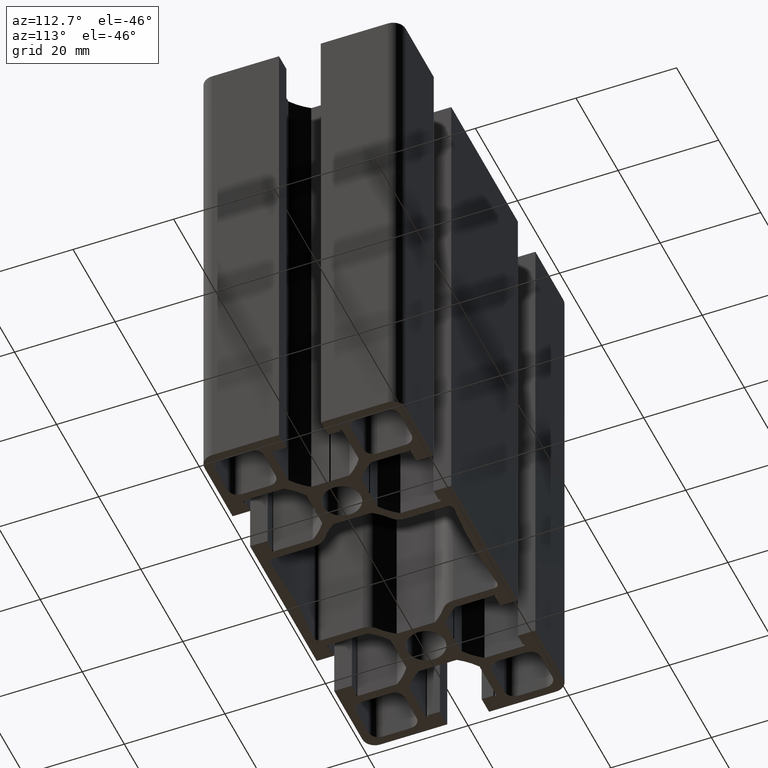
[diagram: clean part render]
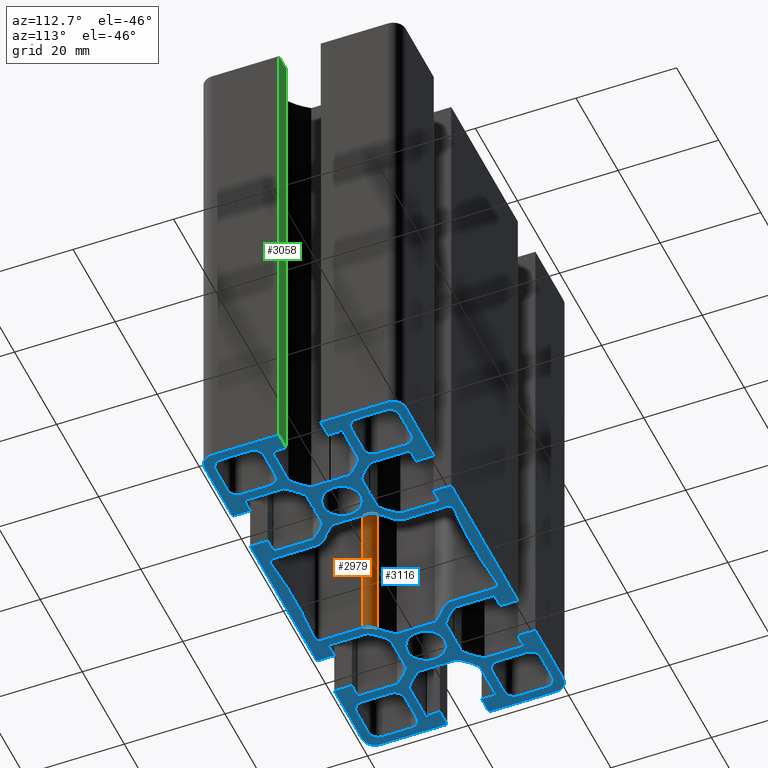
[diagram: same view with three faces highlighted in distinct colors, each labeled with its STEP entity id]
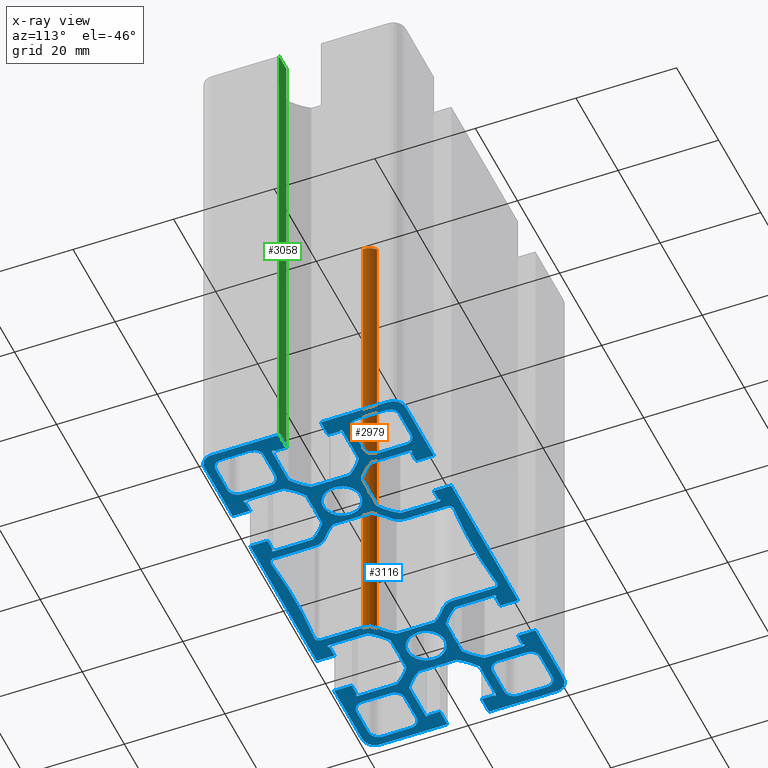
[diagram: x-ray of the same camera — body ghosted, the three highlighted faces saturated]
A machine part, auxiliary view with three faces highlighted in distinct colors.
The next image is the same camera in x-ray (body ghosted, the three faces saturated) — at least one of them is partly hidden behind the body in this view.
Their STEP definitions:

[orange] entity #2979 — the highlighted cylindrical surface (edge-blend (fillet) strip) has radius 3 mm, axis along (0, 0, 1).
#141=FACE_OUTER_BOUND('',#295,.T.);
#295=EDGE_LOOP('',(#2059,#2060,#2061,#2062));
#474=LINE('',#4375,#808);
#476=LINE('',#4381,#810);
#808=VECTOR('',#3496,100.);
#810=VECTOR('',#3502,100.);
#1139=CIRCLE('',#3158,3.);
#1140=CIRCLE('',#3159,3.);
#1269=VERTEX_POINT('',#4372);
#1270=VERTEX_POINT('',#4374);
#1271=VERTEX_POINT('',#4378);
#1272=VERTEX_POINT('',#4380);
#1588=EDGE_CURVE('',#1269,#1270,#474,.T.);
#1590=EDGE_CURVE('',#1271,#1269,#1139,.T.);
#1591=EDGE_CURVE('',#1271,#1272,#476,.T.);
#1592=EDGE_CURVE('',#1270,#1272,#1140,.T.);
#2059=ORIENTED_EDGE('',*,*,#1590,.F.);
#2060=ORIENTED_EDGE('',*,*,#1591,.T.);
#2061=ORIENTED_EDGE('',*,*,#1592,.F.);
#2062=ORIENTED_EDGE('',*,*,#1588,.F.);
#2914=CYLINDRICAL_SURFACE('',#3157,3.);
#2979=ADVANCED_FACE('',(#141),#2914,.T.);
#3157=AXIS2_PLACEMENT_3D('',#4377,#3498,#3499);
#3158=AXIS2_PLACEMENT_3D('',#4379,#3500,#3501);
#3159=AXIS2_PLACEMENT_3D('',#4382,#3503,#3504);
#3496=DIRECTION('',(0.,0.,1.));
#3498=DIRECTION('center_axis',(0.,0.,1.));
#3499=DIRECTION('ref_axis',(1.,-4.736951571734E-14,0.));
#3500=DIRECTION('center_axis',(0.,0.,-1.));
#3501=DIRECTION('ref_axis',(1.,-4.736951571734E-14,0.));
#3502=DIRECTION('',(0.,0.,1.));
#3503=DIRECTION('center_axis',(0.,0.,1.));
#3504=DIRECTION('ref_axis',(1.,-4.736951571734E-14,0.));
#4372=CARTESIAN_POINT('',(-11.3000000000002,-8.95595503726284,0.));
#4374=CARTESIAN_POINT('',(-11.3000000000002,-8.95595503726284,100.));
#4375=CARTESIAN_POINT('',(-11.3000000000002,-8.95595503726284,0.));
#4377=CARTESIAN_POINT('Origin',(-14.3000000000001,-8.9559550372627,0.));
#4378=CARTESIAN_POINT('',(-12.4546686564023,-6.59063217719996,0.));
#4379=CARTESIAN_POINT('Origin',(-14.3000000000001,-8.9559550372627,0.));
#4380=CARTESIAN_POINT('',(-12.4546686564023,-6.59063217719996,100.));
#4381=CARTESIAN_POINT('',(-12.4546686564023,-6.59063217719996,0.));
#4382=CARTESIAN_POINT('Origin',(-14.3000000000001,-8.9559550372627,100.));

[blue] entity #3116 — the highlighted planar face has unit normal (0, 0, 1).
#24=FACE_BOUND('',#442,.T.);
#25=FACE_BOUND('',#443,.T.);
#26=FACE_BOUND('',#444,.T.);
#27=FACE_BOUND('',#445,.T.);
#28=FACE_BOUND('',#446,.T.);
#29=FACE_BOUND('',#447,.T.);
#30=FACE_BOUND('',#448,.T.);
#124=PLANE('',#3392);
#278=FACE_OUTER_BOUND('',#441,.T.);
#441=EDGE_LOOP('',(#2751,#2752,#2753,#2754,#2755,#2756,#2757,#2758,#2759,
#2760,#2761,#2762,#2763,#2764,#2765,#2766,#2767,#2768,#2769,#2770,#2771,
#2772,#2773,#2774,#2775,#2776,#2777,#2778,#2779,#2780,#2781,#2782,#2783,
#2784,#2785,#2786,#2787,#2788,#2789,#2790,#2791,#2792,#2793,#2794,#2795,
#2796,#2797,#2798,#2799,#2800,#2801,#2802,#2803,#2804,#2805,#2806,#2807,
#2808,#2809,#2810,#2811,#2812,#2813,#2814,#2815,#2816,#2817,#2818,#2819,
#2820,#2821,#2822,#2823,#2824,#2825,#2826,#2827,#2828,#2829,#2830,#2831,
#2832,#2833,#2834,#2835,#2836,#2837,#2838,#2839,#2840,#2841,#2842,#2843,
#2844,#2845,#2846,#2847,#2848));
#442=EDGE_LOOP('',(#2849,#2850,#2851,#2852,#2853,#2854,#2855,#2856,#2857,
#2858,#2859,#2860,#2861,#2862,#2863,#2864,#2865,#2866,#2867,#2868));
#443=EDGE_LOOP('',(#2869,#2870,#2871,#2872,#2873,#2874,#2875,#2876));
#444=EDGE_LOOP('',(#2877,#2878,#2879,#2880,#2881,#2882,#2883,#2884));
#445=EDGE_LOOP('',(#2885,#2886,#2887,#2888,#2889,#2890,#2891,#2892));
#446=EDGE_LOOP('',(#2893,#2894,#2895,#2896,#2897,#2898,#2899,#2900));
#447=EDGE_LOOP('',(#2901));
#448=EDGE_LOOP('',(#2902));
#451=LINE('',#4289,#785);
#457=LINE('',#4313,#791);
#462=LINE('',#4331,#796);
#467=LINE('',#4349,#801);
#473=LINE('',#4373,#807);
#478=LINE('',#4391,#812);
#483=LINE('',#4409,#817);
#487=LINE('',#4421,#821);
#491=LINE('',#4433,#825);
#495=LINE('',#4444,#829);
#499=LINE('',#4457,#833);
#503=LINE('',#4469,#837);
#507=LINE('',#4481,#841);
#511=LINE('',#4492,#845);
#515=LINE('',#4505,#849);
#519=LINE('',#4517,#853);
#523=LINE('',#4529,#857);
#527=LINE('',#4540,#861);
#531=LINE('',#4553,#865);
#535=LINE('',#4565,#869);
#539=LINE('',#4577,#873);
#543=LINE('',#4588,#877);
#547=LINE('',#4611,#881);
#550=LINE('',#4617,#884);
#553=LINE('',#4623,#887);
#556=LINE('',#4629,#890);
#560=LINE('',#4641,#894);
#564=LINE('',#4653,#898);
#567=LINE('',#4659,#901);
#570=LINE('',#4665,#904);
#573=LINE('',#4671,#907);
#576=LINE('',#4677,#910);
#580=LINE('',#4689,#914);
#584=LINE('',#4701,#918);
#587=LINE('',#4707,#921);
#590=LINE('',#4713,#924);
#593=LINE('',#4719,#927);
#597=LINE('',#4731,#931);
#601=LINE('',#4743,#935);
#604=LINE('',#4749,#938);
#607=LINE('',#4755,#941);
#611=LINE('',#4767,#945);
#614=LINE('',#4773,#948);
#617=LINE('',#4779,#951);
#621=LINE('',#4791,#955);
#625=LINE('',#4803,#959);
#628=LINE('',#4809,#962);
#631=LINE('',#4815,#965);
#634=LINE('',#4821,#968);
#638=LINE('',#4833,#972);
#642=LINE('',#4845,#976);
#645=LINE('',#4851,#979);
#648=LINE('',#4857,#982);
#652=LINE('',#4869,#986);
#655=LINE('',#4875,#989);
#658=LINE('',#4881,#992);
#662=LINE('',#4893,#996);
#666=LINE('',#4905,#1000);
#669=LINE('',#4911,#1003);
#672=LINE('',#4917,#1006);
#675=LINE('',#4923,#1009);
#679=LINE('',#4935,#1013);
#683=LINE('',#4947,#1017);
#686=LINE('',#4953,#1020);
#689=LINE('',#4959,#1023);
#692=LINE('',#4965,#1026);
#695=LINE('',#4971,#1029);
#699=LINE('',#4983,#1033);
#703=LINE('',#4995,#1037);
#706=LINE('',#5001,#1040);
#709=LINE('',#5007,#1043);
#712=LINE('',#5013,#1046);
#716=LINE('',#5025,#1050);
#720=LINE('',#5037,#1054);
#723=LINE('',#5043,#1057);
#726=LINE('',#5049,#1060);
#730=LINE('',#5061,#1064);
#733=LINE('',#5067,#1067);
#736=LINE('',#5073,#1070);
#740=LINE('',#5085,#1074);
#744=LINE('',#5097,#1078);
#747=LINE('',#5103,#1081);
#750=LINE('',#5109,#1084);
#753=LINE('',#5115,#1087);
#757=LINE('',#5127,#1091);
#761=LINE('',#5139,#1095);
#764=LINE('',#5145,#1098);
#767=LINE('',#5151,#1101);
#771=LINE('',#5163,#1105);
#774=LINE('',#5169,#1108);
#777=LINE('',#5175,#1111);
#781=LINE('',#5186,#1115);
#785=VECTOR('',#3405,8.23766349700717);
#791=VECTOR('',#3431,8.23766349700749);
#796=VECTOR('',#3450,7.60000000000019);
#801=VECTOR('',#3469,8.23766349700751);
#807=VECTOR('',#3495,8.23766349700744);
#812=VECTOR('',#3514,7.60000000000012);
#817=VECTOR('',#3533,5.60000000000006);
#821=VECTOR('',#3545,5.59999999999967);
#825=VECTOR('',#3557,5.59999999999981);
#829=VECTOR('',#3569,5.60000000000006);
#833=VECTOR('',#3581,5.60000000000034);
#837=VECTOR('',#3593,5.60000000000016);
#841=VECTOR('',#3605,5.60000000000002);
#845=VECTOR('',#3617,5.60000000000006);
#849=VECTOR('',#3629,5.59999999999988);
#853=VECTOR('',#3641,5.60000000000015);
#857=VECTOR('',#3653,5.60000000000059);
#861=VECTOR('',#3665,5.60000000000015);
#865=VECTOR('',#3677,5.60000000000022);
#869=VECTOR('',#3689,5.59999999999988);
#873=VECTOR('',#3701,5.60000000000001);
#877=VECTOR('',#3713,5.59999999999981);
#881=VECTOR('',#3737,3.59999999999929);
#884=VECTOR('',#3742,0.282842712475078);
#887=VECTOR('',#3747,0.282842712474538);
#890=VECTOR('',#3752,3.60000000000017);
#894=VECTOR('',#3764,7.79999999999999);
#898=VECTOR('',#3776,2.34999999999957);
#901=VECTOR('',#3781,3.49999999999994);
#904=VECTOR('',#3786,31.7);
#907=VECTOR('',#3791,3.49999999999994);
#910=VECTOR('',#3796,2.35000000000073);
#914=VECTOR('',#3808,7.79999999999996);
#918=VECTOR('',#3820,3.60000000000021);
#921=VECTOR('',#3825,0.282842712474563);
#924=VECTOR('',#3830,0.282842712474588);
#927=VECTOR('',#3835,3.59999999999992);
#931=VECTOR('',#3847,7.80000000000006);
#935=VECTOR('',#3859,2.34999999999992);
#938=VECTOR('',#3864,3.50000000000001);
#941=VECTOR('',#3869,13.3499999999997);
#945=VECTOR('',#3881,13.35);
#948=VECTOR('',#3886,3.50000000000016);
#951=VECTOR('',#3891,2.34999999999985);
#955=VECTOR('',#3903,7.80000000000001);
#959=VECTOR('',#3915,3.60000000000028);
#962=VECTOR('',#3920,0.28284271247428);
#965=VECTOR('',#3925,0.282842712474362);
#968=VECTOR('',#3930,3.6000000000001);
#972=VECTOR('',#3942,7.80000000000005);
#976=VECTOR('',#3954,2.34999999999996);
#979=VECTOR('',#3959,3.49999999999997);
#982=VECTOR('',#3964,13.3500000000002);
#986=VECTOR('',#3976,13.35);
#989=VECTOR('',#3981,3.50000000000023);
#992=VECTOR('',#3986,2.35000000000067);
#996=VECTOR('',#3998,7.7999999999999);
#1000=VECTOR('',#4010,3.6000000000001);
#1003=VECTOR('',#4015,0.282842712474312);
#1006=VECTOR('',#4020,0.282842712475166);
#1009=VECTOR('',#4025,3.59999999999971);
#1013=VECTOR('',#4037,7.79999999999989);
#1017=VECTOR('',#4049,2.35000000000035);
#1020=VECTOR('',#4054,3.50000000000005);
#1023=VECTOR('',#4059,31.7000000000001);
#1026=VECTOR('',#4064,3.50000000000005);
#1029=VECTOR('',#4069,2.3500000000001);
#1033=VECTOR('',#4081,7.7999999999999);
#1037=VECTOR('',#4093,3.6000000000001);
#1040=VECTOR('',#4098,0.282842712474638);
#1043=VECTOR('',#4103,0.282842712474965);
#1046=VECTOR('',#4108,3.5999999999996);
#1050=VECTOR('',#4120,7.79999999999987);
#1054=VECTOR('',#4132,2.34999999999989);
#1057=VECTOR('',#4137,3.49999999999994);
#1060=VECTOR('',#4142,13.3499999999999);
#1064=VECTOR('',#4154,13.3500000000003);
#1067=VECTOR('',#4159,3.50000000000009);
#1070=VECTOR('',#4164,2.35000000000028);
#1074=VECTOR('',#4176,7.79999999999994);
#1078=VECTOR('',#4188,3.6000000000001);
#1081=VECTOR('',#4193,0.282842712474638);
#1084=VECTOR('',#4198,0.282842712474362);
#1087=VECTOR('',#4203,3.60000000000028);
#1091=VECTOR('',#4215,7.80000000000019);
#1095=VECTOR('',#4227,2.34999999999999);
#1098=VECTOR('',#4232,3.50000000000023);
#1101=VECTOR('',#4237,13.3500000000001);
#1105=VECTOR('',#4249,13.3500000000001);
#1108=VECTOR('',#4254,3.50000000000009);
#1111=VECTOR('',#4259,2.34999999999992);
#1115=VECTOR('',#4271,7.79999999999999);
#1117=CIRCLE('',#3120,3.);
#1119=CIRCLE('',#3124,1.);
#1121=CIRCLE('',#3127,106.708333333337);
#1123=CIRCLE('',#3130,1.);
#1125=CIRCLE('',#3134,3.);
#1127=CIRCLE('',#3137,12.8999999999991);
#1129=CIRCLE('',#3141,12.8999999999991);
#1131=CIRCLE('',#3144,3.);
#1133=CIRCLE('',#3148,1.);
#1135=CIRCLE('',#3151,106.708333333337);
#1137=CIRCLE('',#3154,1.);
#1139=CIRCLE('',#3158,3.);
#1141=CIRCLE('',#3161,12.8999999999991);
#1143=CIRCLE('',#3165,12.8999999999991);
#1145=CIRCLE('',#3168,2.);
#1147=CIRCLE('',#3172,2.);
#1149=CIRCLE('',#3176,2.);
#1151=CIRCLE('',#3180,2.);
#1153=CIRCLE('',#3184,2.);
#1155=CIRCLE('',#3188,2.);
#1157=CIRCLE('',#3192,2.);
#1159=CIRCLE('',#3196,2.);
#1161=CIRCLE('',#3200,2.);
#1163=CIRCLE('',#3204,2.);
#1165=CIRCLE('',#3208,2.);
#1167=CIRCLE('',#3212,2.);
#1169=CIRCLE('',#3216,2.);
#1171=CIRCLE('',#3220,2.);
#1173=CIRCLE('',#3224,2.);
#1175=CIRCLE('',#3228,2.);
#1178=CIRCLE('',#3233,3.735);
#1180=CIRCLE('',#3236,3.735);
#1181=CIRCLE('',#3238,12.8999999999991);
#1183=CIRCLE('',#3245,12.8999999999991);
#1185=CIRCLE('',#3249,0.250000000000679);
#1187=CIRCLE('',#3257,0.249999999999392);
#1189=CIRCLE('',#3261,12.8999999999991);
#1191=CIRCLE('',#3268,12.8999999999991);
#1193=CIRCLE('',#3272,0.249999999999986);
#1195=CIRCLE('',#3278,2.49999999999996);
#1197=CIRCLE('',#3284,0.249999999999986);
#1199=CIRCLE('',#3288,12.8999999999991);
#1201=CIRCLE('',#3295,12.8999999999991);
#1203=CIRCLE('',#3299,0.249999999999986);
#1205=CIRCLE('',#3305,2.49999999999996);
#1207=CIRCLE('',#3311,0.249999999999453);
#1209=CIRCLE('',#3315,12.8999999999991);
#1211=CIRCLE('',#3322,12.8999999999991);
#1213=CIRCLE('',#3326,0.249999999999986);
#1215=CIRCLE('',#3334,0.249999999999986);
#1217=CIRCLE('',#3338,12.8999999999991);
#1219=CIRCLE('',#3345,12.8999999999991);
#1221=CIRCLE('',#3349,0.249999999999986);
#1223=CIRCLE('',#3355,2.49999999999996);
#1225=CIRCLE('',#3361,0.249999999999986);
#1227=CIRCLE('',#3365,12.8999999999991);
#1229=CIRCLE('',#3372,12.8999999999991);
#1231=CIRCLE('',#3376,0.249999999999986);
#1233=CIRCLE('',#3382,2.49999999999996);
#1235=CIRCLE('',#3388,0.249999999999986);
#1237=VERTEX_POINT('',#4279);
#1238=VERTEX_POINT('',#4280);
#1241=VERTEX_POINT('',#4288);
#1243=VERTEX_POINT('',#4294);
#1245=VERTEX_POINT('',#4300);
#1247=VERTEX_POINT('',#4306);
#1249=VERTEX_POINT('',#4312);
#1251=VERTEX_POINT('',#4318);
#1253=VERTEX_POINT('',#4324);
#1255=VERTEX_POINT('',#4330);
#1257=VERTEX_POINT('',#4336);
#1259=VERTEX_POINT('',#4342);
#1261=VERTEX_POINT('',#4348);
#1263=VERTEX_POINT('',#4354);
#1265=VERTEX_POINT('',#4360);
#1267=VERTEX_POINT('',#4366);
#1269=VERTEX_POINT('',#4372);
#1271=VERTEX_POINT('',#4378);
#1273=VERTEX_POINT('',#4384);
#1275=VERTEX_POINT('',#4390);
#1277=VERTEX_POINT('',#4399);
#1278=VERTEX_POINT('',#4400);
#1281=VERTEX_POINT('',#4408);
#1283=VERTEX_POINT('',#4414);
#1285=VERTEX_POINT('',#4420);
#1287=VERTEX_POINT('',#4426);
#1289=VERTEX_POINT('',#4432);
#1291=VERTEX_POINT('',#4438);
#1293=VERTEX_POINT('',#4447);
#1294=VERTEX_POINT('',#4448);
#1297=VERTEX_POINT('',#4456);
#1299=VERTEX_POINT('',#4462);
#1301=VERTEX_POINT('',#4468);
#1303=VERTEX_POINT('',#4474);
#1305=VERTEX_POINT('',#4480);
#1307=VERTEX_POINT('',#4486);
#1309=VERTEX_POINT('',#4495);
#1310=VERTEX_POINT('',#4496);
#1313=VERTEX_POINT('',#4504);
#1315=VERTEX_POINT('',#4510);
#1317=VERTEX_POINT('',#4516);
#1319=VERTEX_POINT('',#4522);
#1321=VERTEX_POINT('',#4528);
#1323=VERTEX_POINT('',#4534);
#1325=VERTEX_POINT('',#4543);
#1326=VERTEX_POINT('',#4544);
#1329=VERTEX_POINT('',#4552);
#1331=VERTEX_POINT('',#4558);
#1333=VERTEX_POINT('',#4564);
#1335=VERTEX_POINT('',#4570);
#1337=VERTEX_POINT('',#4576);
#1339=VERTEX_POINT('',#4582);
#1342=VERTEX_POINT('',#4593);
#1344=VERTEX_POINT('',#4598);
#1345=VERTEX_POINT('',#4601);
#1346=VERTEX_POINT('',#4602);
#1349=VERTEX_POINT('',#4610);
#1351=VERTEX_POINT('',#4616);
#1353=VERTEX_POINT('',#4622);
#1355=VERTEX_POINT('',#4628);
#1357=VERTEX_POINT('',#4634);
#1359=VERTEX_POINT('',#4640);
#1361=VERTEX_POINT('',#4646);
#1363=VERTEX_POINT('',#4652);
#1365=VERTEX_POINT('',#4658);
#1367=VERTEX_POINT('',#4664);
#1369=VERTEX_POINT('',#4670);
#1371=VERTEX_POINT('',#4676);
#1373=VERTEX_POINT('',#4682);
#1375=VERTEX_POINT('',#4688);
#1377=VERTEX_POINT('',#4694);
#1379=VERTEX_POINT('',#4700);
#1381=VERTEX_POINT('',#4706);
#1383=VERTEX_POINT('',#4712);
#1385=VERTEX_POINT('',#4718);
#1387=VERTEX_POINT('',#4724);
#1389=VERTEX_POINT('',#4730);
#1391=VERTEX_POINT('',#4736);
#1393=VERTEX_POINT('',#4742);
#1395=VERTEX_POINT('',#4748);
#1397=VERTEX_POINT('',#4754);
#1399=VERTEX_POINT('',#4760);
#1401=VERTEX_POINT('',#4766);
#1403=VERTEX_POINT('',#4772);
#1405=VERTEX_POINT('',#4778);
#1407=VERTEX_POINT('',#4784);
#1409=VERTEX_POINT('',#4790);
#1411=VERTEX_POINT('',#4796);
#1413=VERTEX_POINT('',#4802);
#1415=VERTEX_POINT('',#4808);
#1417=VERTEX_POINT('',#4814);
#1419=VERTEX_POINT('',#4820);
#1421=VERTEX_POINT('',#4826);
#1423=VERTEX_POINT('',#4832);
#1425=VERTEX_POINT('',#4838);
#1427=VERTEX_POINT('',#4844);
#1429=VERTEX_POINT('',#4850);
#1431=VERTEX_POINT('',#4856);
#1433=VERTEX_POINT('',#4862);
#1435=VERTEX_POINT('',#4868);
#1437=VERTEX_POINT('',#4874);
#1439=VERTEX_POINT('',#4880);
#1441=VERTEX_POINT('',#4886);
#1443=VERTEX_POINT('',#4892);
#1445=VERTEX_POINT('',#4898);
#1447=VERTEX_POINT('',#4904);
#1449=VERTEX_POINT('',#4910);
#1451=VERTEX_POINT('',#4916);
#1453=VERTEX_POINT('',#4922);
#1455=VERTEX_POINT('',#4928);
#1457=VERTEX_POINT('',#4934);
#1459=VERTEX_POINT('',#4940);
#1461=VERTEX_POINT('',#4946);
#1463=VERTEX_POINT('',#4952);
#1465=VERTEX_POINT('',#4958);
#1467=VERTEX_POINT('',#4964);
#1469=VERTEX_POINT('',#4970);
#1471=VERTEX_POINT('',#4976);
#1473=VERTEX_POINT('',#4982);
#1475=VERTEX_POINT('',#4988);
#1477=VERTEX_POINT('',#4994);
#1479=VERTEX_POINT('',#5000);
#1481=VERTEX_POINT('',#5006);
#1483=VERTEX_POINT('',#5012);
#1485=VERTEX_POINT('',#5018);
#1487=VERTEX_POINT('',#5024);
#1489=VERTEX_POINT('',#5030);
#1491=VERTEX_POINT('',#5036);
#1493=VERTEX_POINT('',#5042);
#1495=VERTEX_POINT('',#5048);
#1497=VERTEX_POINT('',#5054);
#1499=VERTEX_POINT('',#5060);
#1501=VERTEX_POINT('',#5066);
#1503=VERTEX_POINT('',#5072);
#1505=VERTEX_POINT('',#5078);
#1507=VERTEX_POINT('',#5084);
#1509=VERTEX_POINT('',#5090);
#1511=VERTEX_POINT('',#5096);
#1513=VERTEX_POINT('',#5102);
#1515=VERTEX_POINT('',#5108);
#1517=VERTEX_POINT('',#5114);
#1519=VERTEX_POINT('',#5120);
#1521=VERTEX_POINT('',#5126);
#1523=VERTEX_POINT('',#5132);
#1525=VERTEX_POINT('',#5138);
#1527=VERTEX_POINT('',#5144);
#1529=VERTEX_POINT('',#5150);
#1531=VERTEX_POINT('',#5156);
#1533=VERTEX_POINT('',#5162);
#1535=VERTEX_POINT('',#5168);
#1537=VERTEX_POINT('',#5174);
#1539=VERTEX_POINT('',#5180);
#1541=EDGE_CURVE('',#1237,#1238,#1117,.T.);
#1545=EDGE_CURVE('',#1241,#1237,#451,.T.);
#1548=EDGE_CURVE('',#1243,#1241,#1119,.T.);
#1551=EDGE_CURVE('',#1245,#1243,#1121,.T.);
#1554=EDGE_CURVE('',#1247,#1245,#1123,.T.);
#1557=EDGE_CURVE('',#1249,#1247,#457,.T.);
#1560=EDGE_CURVE('',#1251,#1249,#1125,.T.);
#1563=EDGE_CURVE('',#1253,#1251,#1127,.T.);
#1566=EDGE_CURVE('',#1255,#1253,#462,.T.);
#1569=EDGE_CURVE('',#1257,#1255,#1129,.T.);
#1572=EDGE_CURVE('',#1259,#1257,#1131,.T.);
#1575=EDGE_CURVE('',#1261,#1259,#467,.T.);
#1578=EDGE_CURVE('',#1263,#1261,#1133,.T.);
#1581=EDGE_CURVE('',#1265,#1263,#1135,.T.);
#1584=EDGE_CURVE('',#1267,#1265,#1137,.T.);
#1587=EDGE_CURVE('',#1269,#1267,#473,.T.);
#1590=EDGE_CURVE('',#1271,#1269,#1139,.T.);
#1593=EDGE_CURVE('',#1273,#1271,#1141,.T.);
#1596=EDGE_CURVE('',#1275,#1273,#478,.T.);
#1599=EDGE_CURVE('',#1238,#1275,#1143,.T.);
#1601=EDGE_CURVE('',#1277,#1278,#1145,.T.);
#1605=EDGE_CURVE('',#1281,#1277,#483,.T.);
#1608=EDGE_CURVE('',#1283,#1281,#1147,.T.);
#1611=EDGE_CURVE('',#1285,#1283,#487,.T.);
#1614=EDGE_CURVE('',#1287,#1285,#1149,.T.);
#1617=EDGE_CURVE('',#1289,#1287,#491,.T.);
#1620=EDGE_CURVE('',#1291,#1289,#1151,.T.);
#1623=EDGE_CURVE('',#1278,#1291,#495,.T.);
#1625=EDGE_CURVE('',#1293,#1294,#1153,.T.);
#1629=EDGE_CURVE('',#1297,#1293,#499,.T.);
#1632=EDGE_CURVE('',#1299,#1297,#1155,.T.);
#1635=EDGE_CURVE('',#1301,#1299,#503,.T.);
#1638=EDGE_CURVE('',#1303,#1301,#1157,.T.);
#1641=EDGE_CURVE('',#1305,#1303,#507,.T.);
#1644=EDGE_CURVE('',#1307,#1305,#1159,.T.);
#1647=EDGE_CURVE('',#1294,#1307,#511,.T.);
#1649=EDGE_CURVE('',#1309,#1310,#1161,.T.);
#1653=EDGE_CURVE('',#1313,#1309,#515,.T.);
#1656=EDGE_CURVE('',#1315,#1313,#1163,.T.);
#1659=EDGE_CURVE('',#1317,#1315,#519,.T.);
#1662=EDGE_CURVE('',#1319,#1317,#1165,.T.);
#1665=EDGE_CURVE('',#1321,#1319,#523,.T.);
#1668=EDGE_CURVE('',#1323,#1321,#1167,.T.);
#1671=EDGE_CURVE('',#1310,#1323,#527,.T.);
#1673=EDGE_CURVE('',#1325,#1326,#1169,.T.);
#1677=EDGE_CURVE('',#1329,#1325,#531,.T.);
#1680=EDGE_CURVE('',#1331,#1329,#1171,.T.);
#1683=EDGE_CURVE('',#1333,#1331,#535,.T.);
#1686=EDGE_CURVE('',#1335,#1333,#1173,.T.);
#1689=EDGE_CURVE('',#1337,#1335,#539,.T.);
#1692=EDGE_CURVE('',#1339,#1337,#1175,.T.);
#1695=EDGE_CURVE('',#1326,#1339,#543,.T.);
#1698=EDGE_CURVE('',#1342,#1342,#1178,.T.);
#1700=EDGE_CURVE('',#1344,#1344,#1180,.T.);
#1701=EDGE_CURVE('',#1345,#1346,#1181,.T.);
#1705=EDGE_CURVE('',#1349,#1345,#547,.T.);
#1708=EDGE_CURVE('',#1351,#1349,#550,.T.);
#1711=EDGE_CURVE('',#1353,#1351,#553,.T.);
#1714=EDGE_CURVE('',#1355,#1353,#556,.T.);
#1717=EDGE_CURVE('',#1357,#1355,#1183,.T.);
#1720=EDGE_CURVE('',#1359,#1357,#560,.T.);
#1723=EDGE_CURVE('',#1361,#1359,#1185,.T.);
#1726=EDGE_CURVE('',#1363,#1361,#564,.T.);
#1729=EDGE_CURVE('',#1365,#1363,#567,.T.);
#1732=EDGE_CURVE('',#1367,#1365,#570,.T.);
#1735=EDGE_CURVE('',#1369,#1367,#573,.T.);
#1738=EDGE_CURVE('',#1371,#1369,#576,.T.);
#1741=EDGE_CURVE('',#1373,#1371,#1187,.T.);
#1744=EDGE_CURVE('',#1375,#1373,#580,.T.);
#1747=EDGE_CURVE('',#1377,#1375,#1189,.T.);
#1750=EDGE_CURVE('',#1379,#1377,#584,.T.);
#1753=EDGE_CURVE('',#1381,#1379,#587,.T.);
#1756=EDGE_CURVE('',#1383,#1381,#590,.T.);
#1759=EDGE_CURVE('',#1385,#1383,#593,.T.);
#1762=EDGE_CURVE('',#1387,#1385,#1191,.T.);
#1765=EDGE_CURVE('',#1389,#1387,#597,.T.);
#1768=EDGE_CURVE('',#1391,#1389,#1193,.T.);
#1771=EDGE_CURVE('',#1393,#1391,#601,.T.);
#1774=EDGE_CURVE('',#1395,#1393,#604,.T.);
#1777=EDGE_CURVE('',#1397,#1395,#607,.T.);
#1780=EDGE_CURVE('',#1399,#1397,#1195,.T.);
#1783=EDGE_CURVE('',#1401,#1399,#611,.T.);
#1786=EDGE_CURVE('',#1403,#1401,#614,.T.);
#1789=EDGE_CURVE('',#1405,#1403,#617,.T.);
#1792=EDGE_CURVE('',#1407,#1405,#1197,.T.);
#1795=EDGE_CURVE('',#1409,#1407,#621,.T.);
#1798=EDGE_CURVE('',#1411,#1409,#1199,.T.);
#1801=EDGE_CURVE('',#1413,#1411,#625,.T.);
#1804=EDGE_CURVE('',#1415,#1413,#628,.T.);
#1807=EDGE_CURVE('',#1417,#1415,#631,.T.);
#1810=EDGE_CURVE('',#1419,#1417,#634,.T.);
#1813=EDGE_CURVE('',#1421,#1419,#1201,.T.);
#1816=EDGE_CURVE('',#1423,#1421,#638,.T.);
#1819=EDGE_CURVE('',#1425,#1423,#1203,.T.);
#1822=EDGE_CURVE('',#1427,#1425,#642,.T.);
#1825=EDGE_CURVE('',#1429,#1427,#645,.T.);
#1828=EDGE_CURVE('',#1431,#1429,#648,.T.);
#1831=EDGE_CURVE('',#1433,#1431,#1205,.T.);
#1834=EDGE_CURVE('',#1435,#1433,#652,.T.);
#1837=EDGE_CURVE('',#1437,#1435,#655,.T.);
#1840=EDGE_CURVE('',#1439,#1437,#658,.T.);
#1843=EDGE_CURVE('',#1441,#1439,#1207,.T.);
#1846=EDGE_CURVE('',#1443,#1441,#662,.T.);
#1849=EDGE_CURVE('',#1445,#1443,#1209,.T.);
#1852=EDGE_CURVE('',#1447,#1445,#666,.T.);
#1855=EDGE_CURVE('',#1449,#1447,#669,.T.);
#1858=EDGE_CURVE('',#1451,#1449,#672,.T.);
#1861=EDGE_CURVE('',#1453,#1451,#675,.T.);
#1864=EDGE_CURVE('',#1455,#1453,#1211,.T.);
#1867=EDGE_CURVE('',#1457,#1455,#679,.T.);
#1870=EDGE_CURVE('',#1459,#1457,#1213,.T.);
#1873=EDGE_CURVE('',#1461,#1459,#683,.T.);
#1876=EDGE_CURVE('',#1463,#1461,#686,.T.);
#1879=EDGE_CURVE('',#1465,#1463,#689,.T.);
#1882=EDGE_CURVE('',#1467,#1465,#692,.T.);
#1885=EDGE_CURVE('',#1469,#1467,#695,.T.);
#1888=EDGE_CURVE('',#1471,#1469,#1215,.T.);
#1891=EDGE_CURVE('',#1473,#1471,#699,.T.);
#1894=EDGE_CURVE('',#1475,#1473,#1217,.T.);
#1897=EDGE_CURVE('',#1477,#1475,#703,.T.);
#1900=EDGE_CURVE('',#1479,#1477,#706,.T.);
#1903=EDGE_CURVE('',#1481,#1479,#709,.T.);
#1906=EDGE_CURVE('',#1483,#1481,#712,.T.);
#1909=EDGE_CURVE('',#1485,#1483,#1219,.T.);
#1912=EDGE_CURVE('',#1487,#1485,#716,.T.);
#1915=EDGE_CURVE('',#1489,#1487,#1221,.T.);
#1918=EDGE_CURVE('',#1491,#1489,#720,.T.);
#1921=EDGE_CURVE('',#1493,#1491,#723,.T.);
#1924=EDGE_CURVE('',#1495,#1493,#726,.T.);
#1927=EDGE_CURVE('',#1497,#1495,#1223,.T.);
#1930=EDGE_CURVE('',#1499,#1497,#730,.T.);
#1933=EDGE_CURVE('',#1501,#1499,#733,.T.);
#1936=EDGE_CURVE('',#1503,#1501,#736,.T.);
#1939=EDGE_CURVE('',#1505,#1503,#1225,.T.);
#1942=EDGE_CURVE('',#1507,#1505,#740,.T.);
#1945=EDGE_CURVE('',#1509,#1507,#1227,.T.);
#1948=EDGE_CURVE('',#1511,#1509,#744,.T.);
#1951=EDGE_CURVE('',#1513,#1511,#747,.T.);
#1954=EDGE_CURVE('',#1515,#1513,#750,.T.);
#1957=EDGE_CURVE('',#1517,#1515,#753,.T.);
#1960=EDGE_CURVE('',#1519,#1517,#1229,.T.);
#1963=EDGE_CURVE('',#1521,#1519,#757,.T.);
#1966=EDGE_CURVE('',#1523,#1521,#1231,.T.);
#1969=EDGE_CURVE('',#1525,#1523,#761,.T.);
#1972=EDGE_CURVE('',#1527,#1525,#764,.T.);
#1975=EDGE_CURVE('',#1529,#1527,#767,.T.);
#1978=EDGE_CURVE('',#1531,#1529,#1233,.T.);
#1981=EDGE_CURVE('',#1533,#1531,#771,.T.);
#1984=EDGE_CURVE('',#1535,#1533,#774,.T.);
#1987=EDGE_CURVE('',#1537,#1535,#777,.T.);
#1990=EDGE_CURVE('',#1539,#1537,#1235,.T.);
#1993=EDGE_CURVE('',#1346,#1539,#781,.T.);
#2751=ORIENTED_EDGE('',*,*,#1993,.F.);
#2752=ORIENTED_EDGE('',*,*,#1701,.F.);
#2753=ORIENTED_EDGE('',*,*,#1705,.F.);
#2754=ORIENTED_EDGE('',*,*,#1708,.F.);
#2755=ORIENTED_EDGE('',*,*,#1711,.F.);
#2756=ORIENTED_EDGE('',*,*,#1714,.F.);
#2757=ORIENTED_EDGE('',*,*,#1717,.F.);
#2758=ORIENTED_EDGE('',*,*,#1720,.F.);
#2759=ORIENTED_EDGE('',*,*,#1723,.F.);
#2760=ORIENTED_EDGE('',*,*,#1726,.F.);
#2761=ORIENTED_EDGE('',*,*,#1729,.F.);
#2762=ORIENTED_EDGE('',*,*,#1732,.F.);
#2763=ORIENTED_EDGE('',*,*,#1735,.F.);
#2764=ORIENTED_EDGE('',*,*,#1738,.F.);
#2765=ORIENTED_EDGE('',*,*,#1741,.F.);
#2766=ORIENTED_EDGE('',*,*,#1744,.F.);
#2767=ORIENTED_EDGE('',*,*,#1747,.F.);
#2768=ORIENTED_EDGE('',*,*,#1750,.F.);
#2769=ORIENTED_EDGE('',*,*,#1753,.F.);
#2770=ORIENTED_EDGE('',*,*,#1756,.F.);
#2771=ORIENTED_EDGE('',*,*,#1759,.F.);
#2772=ORIENTED_EDGE('',*,*,#1762,.F.);
#2773=ORIENTED_EDGE('',*,*,#1765,.F.);
#2774=ORIENTED_EDGE('',*,*,#1768,.F.);
#2775=ORIENTED_EDGE('',*,*,#1771,.F.);
#2776=ORIENTED_EDGE('',*,*,#1774,.F.);
#2777=ORIENTED_EDGE('',*,*,#1777,.F.);
#2778=ORIENTED_EDGE('',*,*,#1780,.F.);
#2779=ORIENTED_EDGE('',*,*,#1783,.F.);
#2780=ORIENTED_EDGE('',*,*,#1786,.F.);
#2781=ORIENTED_EDGE('',*,*,#1789,.F.);
#2782=ORIENTED_EDGE('',*,*,#1792,.F.);
#2783=ORIENTED_EDGE('',*,*,#1795,.F.);
#2784=ORIENTED_EDGE('',*,*,#1798,.F.);
#2785=ORIENTED_EDGE('',*,*,#1801,.F.);
#2786=ORIENTED_EDGE('',*,*,#1804,.F.);
#2787=ORIENTED_EDGE('',*,*,#1807,.F.);
#2788=ORIENTED_EDGE('',*,*,#1810,.F.);
#2789=ORIENTED_EDGE('',*,*,#1813,.F.);
#2790=ORIENTED_EDGE('',*,*,#1816,.F.);
#2791=ORIENTED_EDGE('',*,*,#1819,.F.);
#2792=ORIENTED_EDGE('',*,*,#1822,.F.);
#2793=ORIENTED_EDGE('',*,*,#1825,.F.);
#2794=ORIENTED_EDGE('',*,*,#1828,.F.);
#2795=ORIENTED_EDGE('',*,*,#1831,.F.);
#2796=ORIENTED_EDGE('',*,*,#1834,.F.);
#2797=ORIENTED_EDGE('',*,*,#1837,.F.);
#2798=ORIENTED_EDGE('',*,*,#1840,.F.);
#2799=ORIENTED_EDGE('',*,*,#1843,.F.);
#2800=ORIENTED_EDGE('',*,*,#1846,.F.);
#2801=ORIENTED_EDGE('',*,*,#1849,.F.);
#2802=ORIENTED_EDGE('',*,*,#1852,.F.);
#2803=ORIENTED_EDGE('',*,*,#1855,.F.);
#2804=ORIENTED_EDGE('',*,*,#1858,.F.);
#2805=ORIENTED_EDGE('',*,*,#1861,.F.);
#2806=ORIENTED_EDGE('',*,*,#1864,.F.);
#2807=ORIENTED_EDGE('',*,*,#1867,.F.);
#2808=ORIENTED_EDGE('',*,*,#1870,.F.);
#2809=ORIENTED_EDGE('',*,*,#1873,.F.);
#2810=ORIENTED_EDGE('',*,*,#1876,.F.);
#2811=ORIENTED_EDGE('',*,*,#1879,.F.);
#2812=ORIENTED_EDGE('',*,*,#1882,.F.);
#2813=ORIENTED_EDGE('',*,*,#1885,.F.);
#2814=ORIENTED_EDGE('',*,*,#1888,.F.);
#2815=ORIENTED_EDGE('',*,*,#1891,.F.);
#2816=ORIENTED_EDGE('',*,*,#1894,.F.);
#2817=ORIENTED_EDGE('',*,*,#1897,.F.);
#2818=ORIENTED_EDGE('',*,*,#1900,.F.);
#2819=ORIENTED_EDGE('',*,*,#1903,.F.);
#2820=ORIENTED_EDGE('',*,*,#1906,.F.);
#2821=ORIENTED_EDGE('',*,*,#1909,.F.);
#2822=ORIENTED_EDGE('',*,*,#1912,.F.);
#2823=ORIENTED_EDGE('',*,*,#1915,.F.);
#2824=ORIENTED_EDGE('',*,*,#1918,.F.);
#2825=ORIENTED_EDGE('',*,*,#1921,.F.);
#2826=ORIENTED_EDGE('',*,*,#1924,.F.);
#2827=ORIENTED_EDGE('',*,*,#1927,.F.);
#2828=ORIENTED_EDGE('',*,*,#1930,.F.);
#2829=ORIENTED_EDGE('',*,*,#1933,.F.);
#2830=ORIENTED_EDGE('',*,*,#1936,.F.);
#2831=ORIENTED_EDGE('',*,*,#1939,.F.);
#2832=ORIENTED_EDGE('',*,*,#1942,.F.);
#2833=ORIENTED_EDGE('',*,*,#1945,.F.);
#2834=ORIENTED_EDGE('',*,*,#1948,.F.);
#2835=ORIENTED_EDGE('',*,*,#1951,.F.);
#2836=ORIENTED_EDGE('',*,*,#1954,.F.);
#2837=ORIENTED_EDGE('',*,*,#1957,.F.);
#2838=ORIENTED_EDGE('',*,*,#1960,.F.);
#2839=ORIENTED_EDGE('',*,*,#1963,.F.);
#2840=ORIENTED_EDGE('',*,*,#1966,.F.);
#2841=ORIENTED_EDGE('',*,*,#1969,.F.);
#2842=ORIENTED_EDGE('',*,*,#1972,.F.);
#2843=ORIENTED_EDGE('',*,*,#1975,.F.);
#2844=ORIENTED_EDGE('',*,*,#1978,.F.);
#2845=ORIENTED_EDGE('',*,*,#1981,.F.);
#2846=ORIENTED_EDGE('',*,*,#1984,.F.);
#2847=ORIENTED_EDGE('',*,*,#1987,.F.);
#2848=ORIENTED_EDGE('',*,*,#1990,.F.);
#2849=ORIENTED_EDGE('',*,*,#1541,.T.);
#2850=ORIENTED_EDGE('',*,*,#1599,.T.);
#2851=ORIENTED_EDGE('',*,*,#1596,.T.);
#2852=ORIENTED_EDGE('',*,*,#1593,.T.);
#2853=ORIENTED_EDGE('',*,*,#1590,.T.);
#2854=ORIENTED_EDGE('',*,*,#1587,.T.);
#2855=ORIENTED_EDGE('',*,*,#1584,.T.);
#2856=ORIENTED_EDGE('',*,*,#1581,.T.);
#2857=ORIENTED_EDGE('',*,*,#1578,.T.);
#2858=ORIENTED_EDGE('',*,*,#1575,.T.);
#2859=ORIENTED_EDGE('',*,*,#1572,.T.);
#2860=ORIENTED_EDGE('',*,*,#1569,.T.);
#2861=ORIENTED_EDGE('',*,*,#1566,.T.);
#2862=ORIENTED_EDGE('',*,*,#1563,.T.);
#2863=ORIENTED_EDGE('',*,*,#1560,.T.);
#2864=ORIENTED_EDGE('',*,*,#1557,.T.);
#2865=ORIENTED_EDGE('',*,*,#1554,.T.);
#2866=ORIENTED_EDGE('',*,*,#1551,.T.);
#2867=ORIENTED_EDGE('',*,*,#1548,.T.);
#2868=ORIENTED_EDGE('',*,*,#1545,.T.);
#2869=ORIENTED_EDGE('',*,*,#1601,.T.);
#2870=ORIENTED_EDGE('',*,*,#1623,.T.);
#2871=ORIENTED_EDGE('',*,*,#1620,.T.);
#2872=ORIENTED_EDGE('',*,*,#1617,.T.);
#2873=ORIENTED_EDGE('',*,*,#1614,.T.);
#2874=ORIENTED_EDGE('',*,*,#1611,.T.);
#2875=ORIENTED_EDGE('',*,*,#1608,.T.);
#2876=ORIENTED_EDGE('',*,*,#1605,.T.);
#2877=ORIENTED_EDGE('',*,*,#1625,.T.);
#2878=ORIENTED_EDGE('',*,*,#1647,.T.);
#2879=ORIENTED_EDGE('',*,*,#1644,.T.);
#2880=ORIENTED_EDGE('',*,*,#1641,.T.);
#2881=ORIENTED_EDGE('',*,*,#1638,.T.);
#2882=ORIENTED_EDGE('',*,*,#1635,.T.);
#2883=ORIENTED_EDGE('',*,*,#1632,.T.);
#2884=ORIENTED_EDGE('',*,*,#1629,.T.);
#2885=ORIENTED_EDGE('',*,*,#1649,.T.);
#2886=ORIENTED_EDGE('',*,*,#1671,.T.);
#2887=ORIENTED_EDGE('',*,*,#1668,.T.);
#2888=ORIENTED_EDGE('',*,*,#1665,.T.);
#2889=ORIENTED_EDGE('',*,*,#1662,.T.);
#2890=ORIENTED_EDGE('',*,*,#1659,.T.);
#2891=ORIENTED_EDGE('',*,*,#1656,.T.);
#2892=ORIENTED_EDGE('',*,*,#1653,.T.);
#2893=ORIENTED_EDGE('',*,*,#1673,.T.);
#2894=ORIENTED_EDGE('',*,*,#1695,.T.);
#2895=ORIENTED_EDGE('',*,*,#1692,.T.);
#2896=ORIENTED_EDGE('',*,*,#1689,.T.);
#2897=ORIENTED_EDGE('',*,*,#1686,.T.);
#2898=ORIENTED_EDGE('',*,*,#1683,.T.);
#2899=ORIENTED_EDGE('',*,*,#1680,.T.);
#2900=ORIENTED_EDGE('',*,*,#1677,.T.);
#2901=ORIENTED_EDGE('',*,*,#1698,.T.);
#2902=ORIENTED_EDGE('',*,*,#1700,.T.);
#3116=ADVANCED_FACE('',(#278,#24,#25,#26,#27,#28,#29,#30),#124,.F.);
#3120=AXIS2_PLACEMENT_3D('',#4281,#3397,#3398);
#3124=AXIS2_PLACEMENT_3D('',#4295,#3410,#3411);
#3127=AXIS2_PLACEMENT_3D('',#4301,#3417,#3418);
#3130=AXIS2_PLACEMENT_3D('',#4307,#3424,#3425);
#3134=AXIS2_PLACEMENT_3D('',#4319,#3436,#3437);
#3137=AXIS2_PLACEMENT_3D('',#4325,#3443,#3444);
#3141=AXIS2_PLACEMENT_3D('',#4337,#3455,#3456);
#3144=AXIS2_PLACEMENT_3D('',#4343,#3462,#3463);
#3148=AXIS2_PLACEMENT_3D('',#4355,#3474,#3475);
#3151=AXIS2_PLACEMENT_3D('',#4361,#3481,#3482);
#3154=AXIS2_PLACEMENT_3D('',#4367,#3488,#3489);
#3158=AXIS2_PLACEMENT_3D('',#4379,#3500,#3501);
#3161=AXIS2_PLACEMENT_3D('',#4385,#3507,#3508);
#3165=AXIS2_PLACEMENT_3D('',#4396,#3519,#3520);
#3168=AXIS2_PLACEMENT_3D('',#4401,#3525,#3526);
#3172=AXIS2_PLACEMENT_3D('',#4415,#3538,#3539);
#3176=AXIS2_PLACEMENT_3D('',#4427,#3550,#3551);
#3180=AXIS2_PLACEMENT_3D('',#4439,#3562,#3563);
#3184=AXIS2_PLACEMENT_3D('',#4449,#3573,#3574);
#3188=AXIS2_PLACEMENT_3D('',#4463,#3586,#3587);
#3192=AXIS2_PLACEMENT_3D('',#4475,#3598,#3599);
#3196=AXIS2_PLACEMENT_3D('',#4487,#3610,#3611);
#3200=AXIS2_PLACEMENT_3D('',#4497,#3621,#3622);
#3204=AXIS2_PLACEMENT_3D('',#4511,#3634,#3635);
#3208=AXIS2_PLACEMENT_3D('',#4523,#3646,#3647);
#3212=AXIS2_PLACEMENT_3D('',#4535,#3658,#3659);
#3216=AXIS2_PLACEMENT_3D('',#4545,#3669,#3670);
#3220=AXIS2_PLACEMENT_3D('',#4559,#3682,#3683);
#3224=AXIS2_PLACEMENT_3D('',#4571,#3694,#3695);
#3228=AXIS2_PLACEMENT_3D('',#4583,#3706,#3707);
#3233=AXIS2_PLACEMENT_3D('',#4594,#3719,#3720);
#3236=AXIS2_PLACEMENT_3D('',#4599,#3725,#3726);
#3238=AXIS2_PLACEMENT_3D('',#4603,#3729,#3730);
#3245=AXIS2_PLACEMENT_3D('',#4635,#3757,#3758);
#3249=AXIS2_PLACEMENT_3D('',#4647,#3769,#3770);
#3257=AXIS2_PLACEMENT_3D('',#4683,#3801,#3802);
#3261=AXIS2_PLACEMENT_3D('',#4695,#3813,#3814);
#3268=AXIS2_PLACEMENT_3D('',#4725,#3840,#3841);
#3272=AXIS2_PLACEMENT_3D('',#4737,#3852,#3853);
#3278=AXIS2_PLACEMENT_3D('',#4761,#3874,#3875);
#3284=AXIS2_PLACEMENT_3D('',#4785,#3896,#3897);
#3288=AXIS2_PLACEMENT_3D('',#4797,#3908,#3909);
#3295=AXIS2_PLACEMENT_3D('',#4827,#3935,#3936);
#3299=AXIS2_PLACEMENT_3D('',#4839,#3947,#3948);
#3305=AXIS2_PLACEMENT_3D('',#4863,#3969,#3970);
#3311=AXIS2_PLACEMENT_3D('',#4887,#3991,#3992);
#3315=AXIS2_PLACEMENT_3D('',#4899,#4003,#4004);
#3322=AXIS2_PLACEMENT_3D('',#4929,#4030,#4031);
#3326=AXIS2_PLACEMENT_3D('',#4941,#4042,#4043);
#3334=AXIS2_PLACEMENT_3D('',#4977,#4074,#4075);
#3338=AXIS2_PLACEMENT_3D('',#4989,#4086,#4087);
#3345=AXIS2_PLACEMENT_3D('',#5019,#4113,#4114);
#3349=AXIS2_PLACEMENT_3D('',#5031,#4125,#4126);
#3355=AXIS2_PLACEMENT_3D('',#5055,#4147,#4148);
#3361=AXIS2_PLACEMENT_3D('',#5079,#4169,#4170);
#3365=AXIS2_PLACEMENT_3D('',#5091,#4181,#4182);
#3372=AXIS2_PLACEMENT_3D('',#5121,#4208,#4209);
#3376=AXIS2_PLACEMENT_3D('',#5133,#4220,#4221);
#3382=AXIS2_PLACEMENT_3D('',#5157,#4242,#4243);
#3388=AXIS2_PLACEMENT_3D('',#5181,#4264,#4265);
#3392=AXIS2_PLACEMENT_3D('',#5189,#4275,#4276);
#3397=DIRECTION('center_axis',(0.,0.,-1.));
#3398=DIRECTION('ref_axis',(0.615110447865925,-0.788440953354264,0.));
#3405=DIRECTION('',(8.62553727787312E-15,-1.,0.));
#3410=DIRECTION('center_axis',(0.,0.,1.));
#3411=DIRECTION('ref_axis',(-0.0956286266922463,-0.995417081306602,0.));
#3417=DIRECTION('center_axis',(0.,0.,-1.));
#3418=DIRECTION('ref_axis',(-0.0956286266924511,-0.995417081306583,0.));
#3424=DIRECTION('center_axis',(0.,0.,1.));
#3425=DIRECTION('ref_axis',(-1.,-2.13162820727999E-13,0.));
#3431=DIRECTION('',(1.18601137570751E-14,1.,0.));
#3436=DIRECTION('center_axis',(0.,0.,-1.));
#3437=DIRECTION('ref_axis',(-1.,-8.28966525053448E-14,0.));
#3443=DIRECTION('center_axis',(0.,0.,1.));
#3444=DIRECTION('ref_axis',(-0.820174893106135,-0.572112877602261,0.));
#3450=DIRECTION('',(2.33731163078974E-14,1.,0.));
#3455=DIRECTION('center_axis',(0.,0.,1.));
#3456=DIRECTION('ref_axis',(-0.615110447865967,0.788440953354231,0.));
#3462=DIRECTION('center_axis',(0.,0.,-1.));
#3463=DIRECTION('ref_axis',(-0.615110447866038,0.788440953354177,0.));
#3469=DIRECTION('',(1.56337863161444E-14,1.,0.));
#3474=DIRECTION('center_axis',(0.,0.,1.));
#3475=DIRECTION('ref_axis',(0.0956286266922892,0.995417081306598,0.));
#3481=DIRECTION('center_axis',(0.,0.,-1.));
#3482=DIRECTION('ref_axis',(0.095628626692456,0.995417081306582,0.));
#3488=DIRECTION('center_axis',(0.,0.,1.));
#3489=DIRECTION('ref_axis',(1.,1.42108547152014E-13,0.));
#3495=DIRECTION('',(-2.10247471148151E-14,-1.,0.));
#3500=DIRECTION('center_axis',(0.,0.,-1.));
#3501=DIRECTION('ref_axis',(1.,-4.736951571734E-14,0.));
#3507=DIRECTION('center_axis',(0.,0.,1.));
#3508=DIRECTION('ref_axis',(0.820174893106143,0.57211287760225,0.));
#3514=DIRECTION('',(1.40238697847386E-14,-1.,0.));
#3519=DIRECTION('center_axis',(0.,0.,1.));
#3520=DIRECTION('ref_axis',(0.61511044786598,-0.788440953354221,0.));
#3525=DIRECTION('center_axis',(0.,0.,1.));
#3526=DIRECTION('ref_axis',(-1.,8.88178419700125E-14,0.));
#3533=DIRECTION('',(1.90323947078596E-14,1.,0.));
#3538=DIRECTION('center_axis',(0.,0.,1.));
#3539=DIRECTION('ref_axis',(1.06581410364008E-13,1.,0.));
#3545=DIRECTION('',(1.,-5.07530525542959E-14,0.));
#3550=DIRECTION('center_axis',(0.,0.,1.));
#3551=DIRECTION('ref_axis',(1.,-1.06581410364017E-13,0.));
#3557=DIRECTION('',(-1.90323947078605E-14,-1.,0.));
#3562=DIRECTION('center_axis',(0.,0.,1.));
#3563=DIRECTION('ref_axis',(1.77635683940023E-14,-1.,0.));
#3569=DIRECTION('',(-1.,0.,0.));
#3573=DIRECTION('center_axis',(0.,0.,1.));
#3574=DIRECTION('ref_axis',(-1.,-5.32907051820087E-14,0.));
#3581=DIRECTION('',(6.34413156928622E-14,-1.,0.));
#3586=DIRECTION('center_axis',(0.,0.,1.));
#3587=DIRECTION('ref_axis',(-3.55271367880013E-14,1.,0.));
#3593=DIRECTION('',(-1.,5.07530525542914E-14,0.));
#3598=DIRECTION('center_axis',(0.,0.,1.));
#3599=DIRECTION('ref_axis',(1.,-3.55271367880026E-14,0.));
#3605=DIRECTION('',(1.90323947078597E-14,1.,0.));
#3610=DIRECTION('center_axis',(0.,0.,1.));
#3611=DIRECTION('ref_axis',(5.32907051820077E-14,-1.,0.));
#3617=DIRECTION('',(1.,-6.34413156928654E-15,0.));
#3621=DIRECTION('center_axis',(0.,0.,1.));
#3622=DIRECTION('ref_axis',(5.32907051820077E-14,1.,0.));
#3629=DIRECTION('',(-1.,0.,0.));
#3634=DIRECTION('center_axis',(0.,0.,1.));
#3635=DIRECTION('ref_axis',(1.,-3.55271367880026E-14,0.));
#3641=DIRECTION('',(-6.34413156928644E-15,1.,0.));
#3646=DIRECTION('center_axis',(0.,0.,1.));
#3647=DIRECTION('ref_axis',(-3.55271367880051E-14,-1.,0.));
#3653=DIRECTION('',(1.,-6.34413156928594E-15,0.));
#3658=DIRECTION('center_axis',(0.,0.,1.));
#3659=DIRECTION('ref_axis',(-1.,1.77635683940041E-14,0.));
#3665=DIRECTION('',(-6.34413156928644E-14,-1.,0.));
#3669=DIRECTION('center_axis',(0.,0.,1.));
#3670=DIRECTION('ref_axis',(-1.,1.77635683940029E-14,0.));
#3677=DIRECTION('',(1.90323947078591E-14,-1.,0.));
#3682=DIRECTION('center_axis',(0.,0.,1.));
#3683=DIRECTION('ref_axis',(1.77635683940029E-13,1.,0.));
#3689=DIRECTION('',(-1.,0.,0.));
#3694=DIRECTION('center_axis',(0.,0.,1.));
#3695=DIRECTION('ref_axis',(1.,0.,0.));
#3701=DIRECTION('',(0.,1.,0.));
#3706=DIRECTION('center_axis',(0.,0.,1.));
#3707=DIRECTION('ref_axis',(-8.88178419700113E-14,-1.,0.));
#3713=DIRECTION('',(1.,-6.34413156928682E-15,0.));
#3719=DIRECTION('center_axis',(0.,0.,1.));
#3720=DIRECTION('ref_axis',(-1.,0.,0.));
#3725=DIRECTION('center_axis',(0.,0.,1.));
#3726=DIRECTION('ref_axis',(-1.,0.,0.));
#3729=DIRECTION('center_axis',(0.,0.,-1.));
#3730=DIRECTION('ref_axis',(0.820174893106135,0.572112877602262,0.));
#3737=DIRECTION('',(-1.,2.96059473233434E-14,0.));
#3742=DIRECTION('',(-0.707106781188149,0.707106781184946,0.));
#3747=DIRECTION('',(-0.70710678118661,-0.707106781186485,0.));
#3752=DIRECTION('',(-1.,0.,0.));
#3757=DIRECTION('center_axis',(0.,0.,-1.));
#3758=DIRECTION('ref_axis',(-0.572112877602276,0.820174893106124,0.));
#3764=DIRECTION('',(-6.77520717591763E-14,-1.,0.));
#3769=DIRECTION('center_axis',(0.,0.,-1.));
#3770=DIRECTION('ref_axis',(-1.,-2.8421709430341E-13,0.));
#3776=DIRECTION('',(1.,9.07075832885401E-14,0.));
#3781=DIRECTION('',(1.01506105108587E-14,-1.,0.));
#3786=DIRECTION('',(-1.,0.,0.));
#3791=DIRECTION('',(-6.09036630651524E-14,1.,0.));
#3796=DIRECTION('',(1.,6.04717221923302E-14,0.));
#3801=DIRECTION('center_axis',(0.,0.,-1.));
#3802=DIRECTION('ref_axis',(-1.,5.68434188609778E-13,0.));
#3808=DIRECTION('',(1.07606231617516E-13,1.,0.));
#3813=DIRECTION('center_axis',(0.,0.,-1.));
#3814=DIRECTION('ref_axis',(0.820174893106161,0.572112877602224,0.));
#3820=DIRECTION('',(-1.,-1.97372982155572E-14,0.));
#3825=DIRECTION('',(-0.707106781186422,0.707106781186673,0.));
#3830=DIRECTION('',(-0.707106781186987,-0.707106781186108,0.));
#3835=DIRECTION('',(-1.,-9.86864910777939E-15,0.));
#3840=DIRECTION('center_axis',(0.,0.,-1.));
#3841=DIRECTION('ref_axis',(-0.572112877602241,0.820174893106149,0.));
#3847=DIRECTION('',(0.,-1.,0.));
#3852=DIRECTION('center_axis',(0.,0.,-1.));
#3853=DIRECTION('ref_axis',(-1.,-2.84217094303975E-13,0.));
#3859=DIRECTION('',(1.,-6.04717221923509E-14,0.));
#3864=DIRECTION('',(-7.10542735760097E-14,-1.,0.));
#3869=DIRECTION('',(-1.,-1.33060437408262E-15,0.));
#3874=DIRECTION('center_axis',(0.,0.,1.));
#3875=DIRECTION('ref_axis',(1.,-5.68434188608096E-14,0.));
#3881=DIRECTION('',(-1.59672524889911E-14,1.,0.));
#3886=DIRECTION('',(1.,-3.04518315325744E-14,0.));
#3891=DIRECTION('',(3.02358610961764E-14,-1.,0.));
#3896=DIRECTION('center_axis',(0.,0.,-1.));
#3897=DIRECTION('ref_axis',(2.84217094304056E-13,1.,0.));
#3903=DIRECTION('',(1.,-9.1095222533346E-15,0.));
#3908=DIRECTION('center_axis',(0.,0.,-1.));
#3909=DIRECTION('ref_axis',(0.57211287760224,-0.82017489310615,0.));
#3915=DIRECTION('',(7.15477060313934E-14,1.,0.));
#3920=DIRECTION('',(0.707106781186595,0.707106781186501,0.));
#3925=DIRECTION('',(-0.707106781185668,0.707106781187427,0.));
#3930=DIRECTION('',(-1.18423789293347E-13,1.,0.));
#3935=DIRECTION('center_axis',(0.,0.,-1.));
#3936=DIRECTION('ref_axis',(0.820174893106152,0.572112877602236,0.));
#3942=DIRECTION('',(-1.,-1.36642833800018E-14,0.));
#3947=DIRECTION('center_axis',(0.,0.,-1.));
#3948=DIRECTION('ref_axis',(2.13162820728012E-13,1.,0.));
#3954=DIRECTION('',(1.209434443847E-13,-1.,0.));
#3959=DIRECTION('',(-1.,-1.01506105108586E-14,0.));
#3964=DIRECTION('',(0.,1.,0.));
#3969=DIRECTION('center_axis',(0.,0.,1.));
#3970=DIRECTION('ref_axis',(-5.68434188608112E-14,-1.,0.));
#3976=DIRECTION('',(1.,2.66120874816517E-15,0.));
#3981=DIRECTION('',(0.,-1.,0.));
#3986=DIRECTION('',(-1.,1.20943444384663E-13,0.));
#3991=DIRECTION('center_axis',(0.,0.,-1.));
#3992=DIRECTION('ref_axis',(1.,0.,0.));
#3998=DIRECTION('',(-7.28761780266778E-14,-1.,0.));
#4003=DIRECTION('center_axis',(0.,0.,-1.));
#4004=DIRECTION('ref_axis',(-0.820174893106112,-0.572112877602294,0.));
#4010=DIRECTION('',(1.,0.,0.));
#4015=DIRECTION('',(0.707106781185668,-0.707106781187427,0.));
#4020=DIRECTION('',(0.70710678118705,0.707106781186045,0.));
#4025=DIRECTION('',(1.,-6.41462192005698E-14,0.));
#4030=DIRECTION('center_axis',(0.,0.,-1.));
#4031=DIRECTION('ref_axis',(0.572112877602293,-0.820174893106113,0.));
#4037=DIRECTION('',(5.97812397875093E-14,1.,0.));
#4042=DIRECTION('center_axis',(0.,0.,-1.));
#4043=DIRECTION('ref_axis',(1.,-1.42108547152008E-13,0.));
#4049=DIRECTION('',(-1.,-1.5117930548085E-14,0.));
#4054=DIRECTION('',(3.04518315325753E-14,1.,0.));
#4059=DIRECTION('',(1.,0.,0.));
#4064=DIRECTION('',(-2.03012210217169E-14,-1.,0.));
#4069=DIRECTION('',(-1.,0.,0.));
#4074=DIRECTION('center_axis',(0.,0.,-1.));
#4075=DIRECTION('ref_axis',(1.,1.42108547152048E-13,0.));
#4081=DIRECTION('',(5.69345140833421E-16,-1.,0.));
#4086=DIRECTION('center_axis',(0.,0.,-1.));
#4087=DIRECTION('ref_axis',(-0.820174893106145,-0.572112877602247,0.));
#4093=DIRECTION('',(1.,0.,0.));
#4098=DIRECTION('',(0.707106781186485,-0.70710678118661,0.));
#4103=DIRECTION('',(0.707106781187552,0.707106781185543,0.));
#4108=DIRECTION('',(1.,-1.97372982155605E-14,0.));
#4113=DIRECTION('center_axis',(0.,0.,-1.));
#4114=DIRECTION('ref_axis',(0.572112877602248,-0.820174893106144,0.));
#4120=DIRECTION('',(-1.54861878306691E-13,1.,0.));
#4125=DIRECTION('center_axis',(0.,0.,-1.));
#4126=DIRECTION('ref_axis',(1.,-1.42108547152291E-13,0.));
#4132=DIRECTION('',(-1.,-1.5117930548088E-14,0.));
#4137=DIRECTION('',(0.,1.,0.));
#4142=DIRECTION('',(1.,1.06448349926607E-14,0.));
#4147=DIRECTION('center_axis',(0.,0.,1.));
#4148=DIRECTION('ref_axis',(-1.,-1.42108547152022E-14,0.));
#4154=DIRECTION('',(2.66120874816511E-15,-1.,0.));
#4159=DIRECTION('',(-1.,2.03012210217167E-14,0.));
#4164=DIRECTION('',(1.05825513836598E-13,1.,0.));
#4169=DIRECTION('center_axis',(0.,0.,-1.));
#4170=DIRECTION('ref_axis',(1.13686837721687E-12,-1.,0.));
#4176=DIRECTION('',(-1.,-1.82190445066694E-14,0.));
#4181=DIRECTION('center_axis',(0.,0.,-1.));
#4182=DIRECTION('ref_axis',(-0.572112877602236,0.820174893106153,0.));
#4188=DIRECTION('',(-1.11022302462513E-13,-1.,0.));
#4193=DIRECTION('',(-0.707106781186485,-0.70710678118661,0.));
#4198=DIRECTION('',(0.707106781186547,-0.707106781186547,0.));
#4203=DIRECTION('',(7.89491928622272E-14,-1.,0.));
#4208=DIRECTION('center_axis',(0.,0.,-1.));
#4209=DIRECTION('ref_axis',(-0.820174893106139,-0.572112877602255,0.));
#4215=DIRECTION('',(1.,2.2773805633336E-14,0.));
#4220=DIRECTION('center_axis',(0.,0.,-1.));
#4221=DIRECTION('ref_axis',(4.26325641456206E-13,-1.,0.));
#4227=DIRECTION('',(-1.81415166577047E-13,1.,0.));
#4232=DIRECTION('',(1.,4.06024420434317E-14,0.));
#4237=DIRECTION('',(0.,-1.,0.));
#4242=DIRECTION('center_axis',(0.,0.,1.));
#4243=DIRECTION('ref_axis',(0.,1.,0.));
#4249=DIRECTION('',(-1.,0.,0.));
#4254=DIRECTION('',(-1.01506105108583E-14,1.,0.));
#4259=DIRECTION('',(1.,0.,0.));
#4264=DIRECTION('center_axis',(0.,0.,-1.));
#4265=DIRECTION('ref_axis',(-1.,0.,0.));
#4271=DIRECTION('',(1.77635683940023E-14,1.,0.));
#4275=DIRECTION('center_axis',(0.,0.,1.));
#4276=DIRECTION('ref_axis',(1.,0.,0.));
#4279=CARTESIAN_POINT('',(-11.2999999999999,8.95595503726302,0.));
#4280=CARTESIAN_POINT('',(-12.4546686564021,6.59063217720036,0.));
#4281=CARTESIAN_POINT('Origin',(-14.2999999999999,8.95595503726316,0.));
#4288=CARTESIAN_POINT('',(-11.2999999999999,17.1936185342702,0.));
#4289=CARTESIAN_POINT('',(-11.2999999999999,8.59680926713504,0.));
#4294=CARTESIAN_POINT('',(-10.2043713733077,18.1890356155768,0.));
#4295=CARTESIAN_POINT('Origin',(-10.2999999999999,17.1936185342702,0.));
#4300=CARTESIAN_POINT('',(10.2043713733074,18.1890356155768,0.));
#4301=CARTESIAN_POINT('Origin',(-3.37507799486048E-13,124.408333333337,
0.));
#4306=CARTESIAN_POINT('',(11.3,17.1936185342703,0.));
#4307=CARTESIAN_POINT('Origin',(10.2999999999999,17.1936185342701,0.));
#4312=CARTESIAN_POINT('',(11.2999999999999,8.95595503726284,0.));
#4313=CARTESIAN_POINT('',(11.2999999999999,4.47797751863134,0.));
#4318=CARTESIAN_POINT('',(12.4546686564021,6.5906321772003,0.));
#4319=CARTESIAN_POINT('Origin',(14.2999999999999,8.95595503726309,0.));
#4324=CARTESIAN_POINT('',(15.1,3.80000000000013,0.));
#4325=CARTESIAN_POINT('Origin',(4.51974387893165,-3.5802561210685,0.));
#4330=CARTESIAN_POINT('',(15.0999999999999,-3.80000000000006,0.));
#4331=CARTESIAN_POINT('',(15.0999999999999,-1.90000000000022,0.));
#4336=CARTESIAN_POINT('',(12.4546686564019,-6.59063217720028,0.));
#4337=CARTESIAN_POINT('Origin',(4.51974387893147,3.58025612106857,0.));
#4342=CARTESIAN_POINT('',(11.3,-8.95595503726287,0.));
#4343=CARTESIAN_POINT('Origin',(14.3,-8.9559550372628,0.));
#4348=CARTESIAN_POINT('',(11.2999999999999,-17.1936185342704,0.));
#4349=CARTESIAN_POINT('',(11.3,-8.59680926713529,0.));
#4354=CARTESIAN_POINT('',(10.2043713733076,-18.1890356155768,0.));
#4355=CARTESIAN_POINT('Origin',(10.2999999999999,-17.1936185342702,0.));
#4360=CARTESIAN_POINT('',(-10.2043713733078,-18.1890356155768,0.));
#4361=CARTESIAN_POINT('Origin',(-2.70894418008538E-13,-124.408333333337,
0.));
#4366=CARTESIAN_POINT('',(-11.3000000000003,-17.1936185342703,0.));
#4367=CARTESIAN_POINT('Origin',(-10.3000000000003,-17.1936185342701,0.));
#4372=CARTESIAN_POINT('',(-11.3000000000002,-8.95595503726284,0.));
#4373=CARTESIAN_POINT('',(-11.3000000000001,-4.47797751863131,0.));
#4378=CARTESIAN_POINT('',(-12.4546686564023,-6.59063217719996,0.));
#4379=CARTESIAN_POINT('Origin',(-14.3000000000001,-8.9559550372627,0.));
#4384=CARTESIAN_POINT('',(-15.0999999999999,-3.79999999999999,0.));
#4385=CARTESIAN_POINT('Origin',(-4.51974387893141,3.5802561210685,0.));
#4390=CARTESIAN_POINT('',(-15.1,3.80000000000013,0.));
#4391=CARTESIAN_POINT('',(-15.1,1.89999999999995,0.));
#4396=CARTESIAN_POINT('Origin',(-4.51974387893153,-3.58025612106836,0.));
#4399=CARTESIAN_POINT('',(-28.7000000000001,-10.7,0.));
#4400=CARTESIAN_POINT('',(-30.7000000000001,-8.69999999999987,0.));
#4401=CARTESIAN_POINT('Origin',(-30.7000000000001,-10.6999999999999,0.));
#4408=CARTESIAN_POINT('',(-28.7000000000002,-16.3000000000001,0.));
#4409=CARTESIAN_POINT('',(-28.7,-8.14999999999978,0.));
#4414=CARTESIAN_POINT('',(-30.7000000000005,-18.3000000000003,0.));
#4415=CARTESIAN_POINT('Origin',(-30.7000000000003,-16.3000000000002,0.));
#4420=CARTESIAN_POINT('',(-36.3000000000002,-18.3,0.));
#4421=CARTESIAN_POINT('',(-18.1500000000006,-18.3000000000009,0.));
#4426=CARTESIAN_POINT('',(-38.3000000000002,-16.2999999999998,0.));
#4427=CARTESIAN_POINT('Origin',(-36.3000000000003,-16.3000000000001,0.));
#4432=CARTESIAN_POINT('',(-38.3000000000001,-10.7,0.));
#4433=CARTESIAN_POINT('',(-38.3,-5.34999999999966,0.));
#4438=CARTESIAN_POINT('',(-36.3000000000001,-8.69999999999987,0.));
#4439=CARTESIAN_POINT('Origin',(-36.3000000000001,-10.6999999999999,0.));
#4444=CARTESIAN_POINT('',(-15.3500000000001,-8.69999999999987,0.));
#4447=CARTESIAN_POINT('',(28.6999999999999,-16.3000000000003,0.));
#4448=CARTESIAN_POINT('',(30.6999999999999,-18.3000000000002,0.));
#4449=CARTESIAN_POINT('Origin',(30.6999999999999,-16.3000000000002,0.));
#4456=CARTESIAN_POINT('',(28.6999999999996,-10.7,0.));
#4457=CARTESIAN_POINT('',(28.6999999999992,-5.34999999999908,0.));
#4462=CARTESIAN_POINT('',(30.6999999999997,-8.69999999999969,0.));
#4463=CARTESIAN_POINT('Origin',(30.6999999999998,-10.6999999999999,0.));
#4468=CARTESIAN_POINT('',(36.2999999999999,-8.69999999999997,0.));
#4469=CARTESIAN_POINT('',(18.1499999999997,-8.69999999999905,0.));
#4474=CARTESIAN_POINT('',(38.2999999999999,-10.7000000000002,0.));
#4475=CARTESIAN_POINT('Origin',(36.2999999999998,-10.7000000000001,0.));
#4480=CARTESIAN_POINT('',(38.2999999999998,-16.3000000000002,0.));
#4481=CARTESIAN_POINT('',(38.3,-8.15000000000047,0.));
#4486=CARTESIAN_POINT('',(36.2999999999999,-18.3000000000002,0.));
#4487=CARTESIAN_POINT('Origin',(36.2999999999998,-16.3000000000002,0.));
#4492=CARTESIAN_POINT('',(15.3499999999998,-18.3000000000001,0.));
#4495=CARTESIAN_POINT('',(30.7000000000001,18.3,0.));
#4496=CARTESIAN_POINT('',(28.7,16.3,0.));
#4497=CARTESIAN_POINT('Origin',(30.7,16.3,0.));
#4504=CARTESIAN_POINT('',(36.3,18.3,0.));
#4505=CARTESIAN_POINT('',(18.1499999999999,18.3,0.));
#4510=CARTESIAN_POINT('',(38.3,16.2999999999998,0.));
#4511=CARTESIAN_POINT('Origin',(36.2999999999999,16.2999999999999,0.));
#4516=CARTESIAN_POINT('',(38.3000000000001,10.6999999999997,0.));
#4517=CARTESIAN_POINT('',(38.3000000000001,5.34999999999996,0.));
#4522=CARTESIAN_POINT('',(36.3,8.69999999999994,0.));
#4523=CARTESIAN_POINT('Origin',(36.3000000000001,10.6999999999999,0.));
#4528=CARTESIAN_POINT('',(30.6999999999994,8.69999999999997,0.));
#4529=CARTESIAN_POINT('',(15.3499999999997,8.70000000000007,0.));
#4534=CARTESIAN_POINT('',(28.6999999999997,10.6999999999998,0.));
#4535=CARTESIAN_POINT('Origin',(30.6999999999995,10.6999999999998,0.));
#4540=CARTESIAN_POINT('',(28.6999999999995,8.14999999999907,0.));
#4543=CARTESIAN_POINT('',(-38.3000000000002,10.7,0.));
#4544=CARTESIAN_POINT('',(-36.3,8.69999999999997,0.));
#4545=CARTESIAN_POINT('Origin',(-36.3000000000002,10.6999999999999,0.));
#4552=CARTESIAN_POINT('',(-38.3000000000003,16.3000000000002,0.));
#4553=CARTESIAN_POINT('',(-38.3000000000001,8.14999999999972,0.));
#4558=CARTESIAN_POINT('',(-36.3,18.3000000000001,0.));
#4559=CARTESIAN_POINT('Origin',(-36.3000000000003,16.3000000000001,0.));
#4564=CARTESIAN_POINT('',(-30.7000000000001,18.3000000000001,0.));
#4565=CARTESIAN_POINT('',(-15.3500000000001,18.3000000000001,0.));
#4570=CARTESIAN_POINT('',(-28.7,16.3,0.));
#4571=CARTESIAN_POINT('Origin',(-30.7000000000001,16.3,0.));
#4576=CARTESIAN_POINT('',(-28.7,10.7,0.));
#4577=CARTESIAN_POINT('',(-28.7,5.34999999999998,0.));
#4582=CARTESIAN_POINT('',(-30.7000000000002,8.69999999999994,0.));
#4583=CARTESIAN_POINT('Origin',(-30.7000000000001,10.7,0.));
#4588=CARTESIAN_POINT('',(-18.1500000000001,8.69999999999986,0.));
#4593=CARTESIAN_POINT('',(23.735,-3.50697312085235E-14,0.));
#4594=CARTESIAN_POINT('Origin',(20.,-3.5527136788005E-14,0.));
#4598=CARTESIAN_POINT('',(-16.2650000000001,3.59845423674865E-14,0.));
#4599=CARTESIAN_POINT('Origin',(-20.0000000000001,3.5527136788005E-14,0.));
#4601=CARTESIAN_POINT('',(-23.8000000000001,5.50000000000002,0.));
#4602=CARTESIAN_POINT('',(-27.0000000000002,8.70000000000001,0.));
#4603=CARTESIAN_POINT('Origin',(-16.4197438789318,16.0802561210687,0.));
#4610=CARTESIAN_POINT('',(-20.2000000000008,5.49999999999992,0.));
#4611=CARTESIAN_POINT('',(-20.2000000000008,5.49999999999992,0.));
#4616=CARTESIAN_POINT('',(-20.0000000000001,5.30000000000005,0.));
#4617=CARTESIAN_POINT('',(-20.0000000000001,5.30000000000005,0.));
#4622=CARTESIAN_POINT('',(-19.8000000000001,5.49999999999997,0.));
#4623=CARTESIAN_POINT('',(-19.8000000000001,5.49999999999997,0.));
#4628=CARTESIAN_POINT('',(-16.1999999999999,5.49999999999997,0.));
#4629=CARTESIAN_POINT('',(-16.1999999999999,5.49999999999997,0.));
#4634=CARTESIAN_POINT('',(-13.,8.70000000000008,0.));
#4635=CARTESIAN_POINT('Origin',(-23.5802561210688,16.0802561210682,0.));
#4640=CARTESIAN_POINT('',(-12.9999999999995,16.5000000000001,0.));
#4641=CARTESIAN_POINT('',(-12.9999999999995,16.5000000000001,0.));
#4646=CARTESIAN_POINT('',(-13.5000000000006,16.5000000000002,0.));
#4647=CARTESIAN_POINT('Origin',(-13.25,16.5,0.));
#4652=CARTESIAN_POINT('',(-15.8500000000002,16.5,0.));
#4653=CARTESIAN_POINT('',(-15.8500000000002,16.5,0.));
#4658=CARTESIAN_POINT('',(-15.8500000000002,19.9999999999999,0.));
#4659=CARTESIAN_POINT('',(-15.8500000000002,19.9999999999999,0.));
#4664=CARTESIAN_POINT('',(15.8499999999998,19.9999999999999,0.));
#4665=CARTESIAN_POINT('',(15.8499999999998,19.9999999999999,0.));
#4670=CARTESIAN_POINT('',(15.85,16.5,0.));
#4671=CARTESIAN_POINT('',(15.85,16.5,0.));
#4676=CARTESIAN_POINT('',(13.4999999999993,16.4999999999999,0.));
#4677=CARTESIAN_POINT('',(13.4999999999993,16.4999999999999,0.));
#4682=CARTESIAN_POINT('',(13.0000000000008,16.5,0.));
#4683=CARTESIAN_POINT('Origin',(13.2500000000001,16.5,0.));
#4688=CARTESIAN_POINT('',(13.,8.70000000000005,0.));
#4689=CARTESIAN_POINT('',(13.,8.70000000000005,0.));
#4694=CARTESIAN_POINT('',(16.1999999999998,5.49999999999997,0.));
#4695=CARTESIAN_POINT('Origin',(23.5802561210687,16.0802561210682,0.));
#4700=CARTESIAN_POINT('',(19.8,5.50000000000004,0.));
#4701=CARTESIAN_POINT('',(19.8,5.50000000000004,0.));
#4706=CARTESIAN_POINT('',(20.,5.30000000000005,0.));
#4707=CARTESIAN_POINT('',(20.,5.30000000000005,0.));
#4712=CARTESIAN_POINT('',(20.2000000000001,5.4999999999999,0.));
#4713=CARTESIAN_POINT('',(20.2000000000001,5.4999999999999,0.));
#4718=CARTESIAN_POINT('',(23.8,5.49999999999994,0.));
#4719=CARTESIAN_POINT('',(23.8,5.49999999999994,0.));
#4724=CARTESIAN_POINT('',(27.,8.69999999999994,0.));
#4725=CARTESIAN_POINT('Origin',(16.4197438789317,16.0802561210683,0.));
#4730=CARTESIAN_POINT('',(27.,16.5,0.));
#4731=CARTESIAN_POINT('',(27.,16.5,0.));
#4736=CARTESIAN_POINT('',(26.4999999999999,16.4999999999999,0.));
#4737=CARTESIAN_POINT('Origin',(26.75,16.4999999999999,0.));
#4742=CARTESIAN_POINT('',(24.15,16.5,0.));
#4743=CARTESIAN_POINT('',(24.15,16.5,0.));
#4748=CARTESIAN_POINT('',(24.1500000000002,20.,0.));
#4749=CARTESIAN_POINT('',(24.1500000000002,20.,0.));
#4754=CARTESIAN_POINT('',(37.4999999999999,20.,0.));
#4755=CARTESIAN_POINT('',(37.4999999999999,20.,0.));
#4760=CARTESIAN_POINT('',(40.0000000000001,17.4999999999999,0.));
#4761=CARTESIAN_POINT('Origin',(37.5000000000001,17.5000000000001,0.));
#4766=CARTESIAN_POINT('',(40.0000000000003,4.14999999999999,0.));
#4767=CARTESIAN_POINT('',(40.0000000000003,4.14999999999999,0.));
#4772=CARTESIAN_POINT('',(36.5000000000001,4.1500000000001,0.));
#4773=CARTESIAN_POINT('',(36.5000000000001,4.1500000000001,0.));
#4778=CARTESIAN_POINT('',(36.5,6.49999999999995,0.));
#4779=CARTESIAN_POINT('',(36.5,6.49999999999995,0.));
#4784=CARTESIAN_POINT('',(36.5000000000001,6.99999999999992,0.));
#4785=CARTESIAN_POINT('Origin',(36.5000000000001,6.74999999999994,0.));
#4790=CARTESIAN_POINT('',(28.7000000000001,6.99999999999999,0.));
#4791=CARTESIAN_POINT('',(28.7000000000001,6.99999999999999,0.));
#4796=CARTESIAN_POINT('',(25.5000000000002,3.80000000000013,0.));
#4797=CARTESIAN_POINT('Origin',(36.0802561210685,-3.58025612106857,0.));
#4802=CARTESIAN_POINT('',(25.4999999999999,0.199999999999854,0.));
#4803=CARTESIAN_POINT('',(25.4999999999999,0.199999999999854,0.));
#4808=CARTESIAN_POINT('',(25.3000000000001,1.06581410364015E-13,0.));
#4809=CARTESIAN_POINT('',(25.3000000000001,1.06581410364015E-13,0.));
#4814=CARTESIAN_POINT('',(25.4999999999997,-0.19999999999996,0.));
#4815=CARTESIAN_POINT('',(25.4999999999997,-0.19999999999996,0.));
#4820=CARTESIAN_POINT('',(25.5000000000001,-3.80000000000006,0.));
#4821=CARTESIAN_POINT('',(25.5000000000001,-3.80000000000006,0.));
#4826=CARTESIAN_POINT('',(28.7000000000001,-7.0000000000001,0.));
#4827=CARTESIAN_POINT('Origin',(36.0802561210687,3.58025612106825,0.));
#4832=CARTESIAN_POINT('',(36.5000000000001,-6.99999999999999,0.));
#4833=CARTESIAN_POINT('',(36.5000000000001,-6.99999999999999,0.));
#4838=CARTESIAN_POINT('',(36.5000000000002,-6.49999999999995,0.));
#4839=CARTESIAN_POINT('Origin',(36.5000000000002,-6.74999999999997,0.));
#4844=CARTESIAN_POINT('',(36.4999999999999,-4.14999999999999,0.));
#4845=CARTESIAN_POINT('',(36.4999999999999,-4.14999999999999,0.));
#4850=CARTESIAN_POINT('',(39.9999999999999,-4.14999999999996,0.));
#4851=CARTESIAN_POINT('',(39.9999999999999,-4.14999999999996,0.));
#4856=CARTESIAN_POINT('',(39.9999999999999,-17.5000000000002,0.));
#4857=CARTESIAN_POINT('',(39.9999999999999,-17.5000000000002,0.));
#4862=CARTESIAN_POINT('',(37.5,-20.,0.));
#4863=CARTESIAN_POINT('Origin',(37.5000000000002,-17.5000000000002,0.));
#4868=CARTESIAN_POINT('',(24.15,-20.0000000000001,0.));
#4869=CARTESIAN_POINT('',(24.15,-20.0000000000001,0.));
#4874=CARTESIAN_POINT('',(24.15,-16.4999999999998,0.));
#4875=CARTESIAN_POINT('',(24.15,-16.4999999999998,0.));
#4880=CARTESIAN_POINT('',(26.5000000000007,-16.5000000000001,0.));
#4881=CARTESIAN_POINT('',(26.5000000000007,-16.5000000000001,0.));
#4886=CARTESIAN_POINT('',(26.9999999999996,-16.4999999999999,0.));
#4887=CARTESIAN_POINT('Origin',(26.7500000000001,-16.5000000000001,0.));
#4892=CARTESIAN_POINT('',(27.0000000000002,-8.70000000000001,0.));
#4893=CARTESIAN_POINT('',(27.0000000000002,-8.70000000000001,0.));
#4898=CARTESIAN_POINT('',(23.7999999999997,-5.50000000000001,0.));
#4899=CARTESIAN_POINT('Origin',(16.4197438789321,-16.0802561210691,0.));
#4904=CARTESIAN_POINT('',(20.1999999999996,-5.50000000000001,0.));
#4905=CARTESIAN_POINT('',(20.1999999999996,-5.50000000000001,0.));
#4910=CARTESIAN_POINT('',(20.0000000000001,-5.29999999999998,0.));
#4911=CARTESIAN_POINT('',(20.0000000000001,-5.29999999999998,0.));
#4916=CARTESIAN_POINT('',(19.7999999999996,-5.50000000000022,0.));
#4917=CARTESIAN_POINT('',(19.7999999999996,-5.50000000000022,0.));
#4922=CARTESIAN_POINT('',(16.1999999999999,-5.49999999999999,0.));
#4923=CARTESIAN_POINT('',(16.1999999999999,-5.49999999999999,0.));
#4928=CARTESIAN_POINT('',(13.0000000000001,-8.70000000000006,0.));
#4929=CARTESIAN_POINT('Origin',(23.5802561210689,-16.080256121068,0.));
#4934=CARTESIAN_POINT('',(12.9999999999996,-16.5,0.));
#4935=CARTESIAN_POINT('',(12.9999999999996,-16.5,0.));
#4940=CARTESIAN_POINT('',(13.4999999999997,-16.5,0.));
#4941=CARTESIAN_POINT('Origin',(13.2499999999997,-16.5,0.));
#4946=CARTESIAN_POINT('',(15.85,-16.5,0.));
#4947=CARTESIAN_POINT('',(15.85,-16.5,0.));
#4952=CARTESIAN_POINT('',(15.8499999999999,-20.,0.));
#4953=CARTESIAN_POINT('',(15.8499999999999,-20.,0.));
#4958=CARTESIAN_POINT('',(-15.8500000000002,-20.,0.));
#4959=CARTESIAN_POINT('',(-15.8500000000002,-20.,0.));
#4964=CARTESIAN_POINT('',(-15.8500000000001,-16.5,0.));
#4965=CARTESIAN_POINT('',(-15.8500000000001,-16.5,0.));
#4970=CARTESIAN_POINT('',(-13.5,-16.5,0.));
#4971=CARTESIAN_POINT('',(-13.5,-16.5,0.));
#4976=CARTESIAN_POINT('',(-13.,-16.5,0.));
#4977=CARTESIAN_POINT('Origin',(-13.25,-16.5,0.));
#4982=CARTESIAN_POINT('',(-13.,-8.70000000000005,0.));
#4983=CARTESIAN_POINT('',(-13.,-8.70000000000005,0.));
#4988=CARTESIAN_POINT('',(-16.2,-5.50000000000008,0.));
#4989=CARTESIAN_POINT('Origin',(-23.5802561210685,-16.0802561210685,0.));
#4994=CARTESIAN_POINT('',(-19.8000000000001,-5.50000000000008,0.));
#4995=CARTESIAN_POINT('',(-19.8000000000001,-5.50000000000008,0.));
#5000=CARTESIAN_POINT('',(-20.0000000000001,-5.30000000000005,0.));
#5001=CARTESIAN_POINT('',(-20.0000000000001,-5.30000000000005,0.));
#5006=CARTESIAN_POINT('',(-20.2000000000006,-5.50000000000001,0.));
#5007=CARTESIAN_POINT('',(-20.2000000000006,-5.50000000000001,0.));
#5012=CARTESIAN_POINT('',(-23.8000000000002,-5.49999999999994,0.));
#5013=CARTESIAN_POINT('',(-23.8000000000002,-5.49999999999994,0.));
#5018=CARTESIAN_POINT('',(-27.0000000000003,-8.70000000000008,0.));
#5019=CARTESIAN_POINT('Origin',(-16.4197438789317,-16.0802561210684,0.));
#5024=CARTESIAN_POINT('',(-26.9999999999991,-16.5,0.));
#5025=CARTESIAN_POINT('',(-26.9999999999991,-16.5,0.));
#5030=CARTESIAN_POINT('',(-26.5,-16.5,0.));
#5031=CARTESIAN_POINT('Origin',(-26.7499999999996,-16.5,0.));
#5036=CARTESIAN_POINT('',(-24.1500000000002,-16.5,0.));
#5037=CARTESIAN_POINT('',(-24.1500000000002,-16.5,0.));
#5042=CARTESIAN_POINT('',(-24.1500000000002,-19.9999999999999,0.));
#5043=CARTESIAN_POINT('',(-24.1500000000002,-19.9999999999999,0.));
#5048=CARTESIAN_POINT('',(-37.5000000000001,-20.,0.));
#5049=CARTESIAN_POINT('',(-37.5000000000001,-20.,0.));
#5054=CARTESIAN_POINT('',(-40.0000000000002,-17.5000000000002,0.));
#5055=CARTESIAN_POINT('Origin',(-37.5000000000003,-17.5000000000001,0.));
#5060=CARTESIAN_POINT('',(-40.0000000000003,-4.14999999999988,0.));
#5061=CARTESIAN_POINT('',(-40.0000000000003,-4.14999999999988,0.));
#5066=CARTESIAN_POINT('',(-36.5000000000002,-4.14999999999996,0.));
#5067=CARTESIAN_POINT('',(-36.5000000000002,-4.14999999999996,0.));
#5072=CARTESIAN_POINT('',(-36.5000000000004,-6.50000000000023,0.));
#5073=CARTESIAN_POINT('',(-36.5000000000004,-6.50000000000023,0.));
#5078=CARTESIAN_POINT('',(-36.5000000000003,-6.99999999999992,0.));
#5079=CARTESIAN_POINT('Origin',(-36.5000000000001,-6.75000000000008,0.));
#5084=CARTESIAN_POINT('',(-28.7000000000003,-6.99999999999978,0.));
#5085=CARTESIAN_POINT('',(-28.7000000000003,-6.99999999999978,0.));
#5090=CARTESIAN_POINT('',(-25.5000000000004,-3.80000000000003,0.));
#5091=CARTESIAN_POINT('Origin',(-36.0802561210687,3.58025612106882,0.));
#5096=CARTESIAN_POINT('',(-25.5,-0.199999999999925,0.));
#5097=CARTESIAN_POINT('',(-25.5,-0.199999999999925,0.));
#5102=CARTESIAN_POINT('',(-25.3,1.06581410364015E-13,0.));
#5103=CARTESIAN_POINT('',(-25.3,1.06581410364015E-13,0.));
#5108=CARTESIAN_POINT('',(-25.4999999999998,0.199999999999925,0.));
#5109=CARTESIAN_POINT('',(-25.4999999999998,0.199999999999925,0.));
#5114=CARTESIAN_POINT('',(-25.5000000000001,3.8000000000002,0.));
#5115=CARTESIAN_POINT('',(-25.5000000000001,3.8000000000002,0.));
#5120=CARTESIAN_POINT('',(-28.7,7.0000000000001,0.));
#5121=CARTESIAN_POINT('Origin',(-36.0802561210686,-3.58025612106836,0.));
#5126=CARTESIAN_POINT('',(-36.5000000000002,6.99999999999992,0.));
#5127=CARTESIAN_POINT('',(-36.5000000000002,6.99999999999992,0.));
#5132=CARTESIAN_POINT('',(-36.5000000000004,6.50000000000009,0.));
#5133=CARTESIAN_POINT('Origin',(-36.5000000000001,6.75000000000001,0.));
#5138=CARTESIAN_POINT('',(-36.5,4.1500000000001,0.));
#5139=CARTESIAN_POINT('',(-36.5,4.1500000000001,0.));
#5144=CARTESIAN_POINT('',(-40.0000000000002,4.14999999999996,0.));
#5145=CARTESIAN_POINT('',(-40.0000000000002,4.14999999999996,0.));
#5150=CARTESIAN_POINT('',(-40.0000000000002,17.5000000000001,0.));
#5151=CARTESIAN_POINT('',(-40.0000000000002,17.5000000000001,0.));
#5156=CARTESIAN_POINT('',(-37.5000000000002,20.,0.));
#5157=CARTESIAN_POINT('Origin',(-37.5000000000002,17.5,0.));
#5162=CARTESIAN_POINT('',(-24.1500000000002,20.,0.));
#5163=CARTESIAN_POINT('',(-24.1500000000002,20.,0.));
#5168=CARTESIAN_POINT('',(-24.1500000000001,16.4999999999999,0.));
#5169=CARTESIAN_POINT('',(-24.1500000000001,16.4999999999999,0.));
#5174=CARTESIAN_POINT('',(-26.5,16.4999999999999,0.));
#5175=CARTESIAN_POINT('',(-26.5,16.4999999999999,0.));
#5180=CARTESIAN_POINT('',(-27.0000000000001,16.5,0.));
#5181=CARTESIAN_POINT('Origin',(-26.7500000000001,16.4999999999999,0.));
#5186=CARTESIAN_POINT('',(-27.0000000000002,8.70000000000001,0.));
#5189=CARTESIAN_POINT('Origin',(-1.27778368716734E-13,-1.63835389897972E-14,
0.));

[green] entity #3058 — the highlighted planar face has unit normal (-0, 1, 0).
#82=PLANE('',#3302);
#220=FACE_OUTER_BOUND('',#376,.T.);
#376=EDGE_LOOP('',(#2371,#2372,#2373,#2374));
#644=LINE('',#4848,#978);
#645=LINE('',#4851,#979);
#646=LINE('',#4853,#980);
#647=LINE('',#4854,#981);
#978=VECTOR('',#3956,100.);
#979=VECTOR('',#3959,3.49999999999997);
#980=VECTOR('',#3960,3.49999999999997);
#981=VECTOR('',#3961,100.);
#1427=VERTEX_POINT('',#4844);
#1428=VERTEX_POINT('',#4846);
#1429=VERTEX_POINT('',#4850);
#1430=VERTEX_POINT('',#4852);
#1824=EDGE_CURVE('',#1427,#1428,#644,.T.);
#1825=EDGE_CURVE('',#1429,#1427,#645,.T.);
#1826=EDGE_CURVE('',#1430,#1428,#646,.T.);
#1827=EDGE_CURVE('',#1429,#1430,#647,.T.);
#2371=ORIENTED_EDGE('',*,*,#1825,.T.);
#2372=ORIENTED_EDGE('',*,*,#1824,.T.);
#2373=ORIENTED_EDGE('',*,*,#1826,.F.);
#2374=ORIENTED_EDGE('',*,*,#1827,.F.);
#3058=ADVANCED_FACE('',(#220),#82,.T.);
#3302=AXIS2_PLACEMENT_3D('',#4849,#3957,#3958);
#3956=DIRECTION('',(0.,0.,1.));
#3957=DIRECTION('center_axis',(-1.01506105108586E-14,1.,0.));
#3958=DIRECTION('ref_axis',(-1.,-1.01252339845814E-14,0.));
#3959=DIRECTION('',(-1.,-1.01506105108586E-14,0.));
#3960=DIRECTION('',(-1.,-1.01506105108586E-14,0.));
#3961=DIRECTION('',(0.,0.,1.));
#4844=CARTESIAN_POINT('',(36.4999999999999,-4.14999999999999,0.));
#4846=CARTESIAN_POINT('',(36.4999999999999,-4.14999999999999,100.));
#4848=CARTESIAN_POINT('',(36.4999999999999,-4.14999999999999,0.));
#4849=CARTESIAN_POINT('Origin',(39.9999999999999,-4.14999999999996,0.));
#4850=CARTESIAN_POINT('',(39.9999999999999,-4.14999999999996,0.));
#4851=CARTESIAN_POINT('',(39.9999999999999,-4.14999999999996,0.));
#4852=CARTESIAN_POINT('',(39.9999999999999,-4.14999999999996,100.));
#4853=CARTESIAN_POINT('',(39.9999999999999,-4.14999999999996,100.));
#4854=CARTESIAN_POINT('',(39.9999999999999,-4.14999999999996,0.));